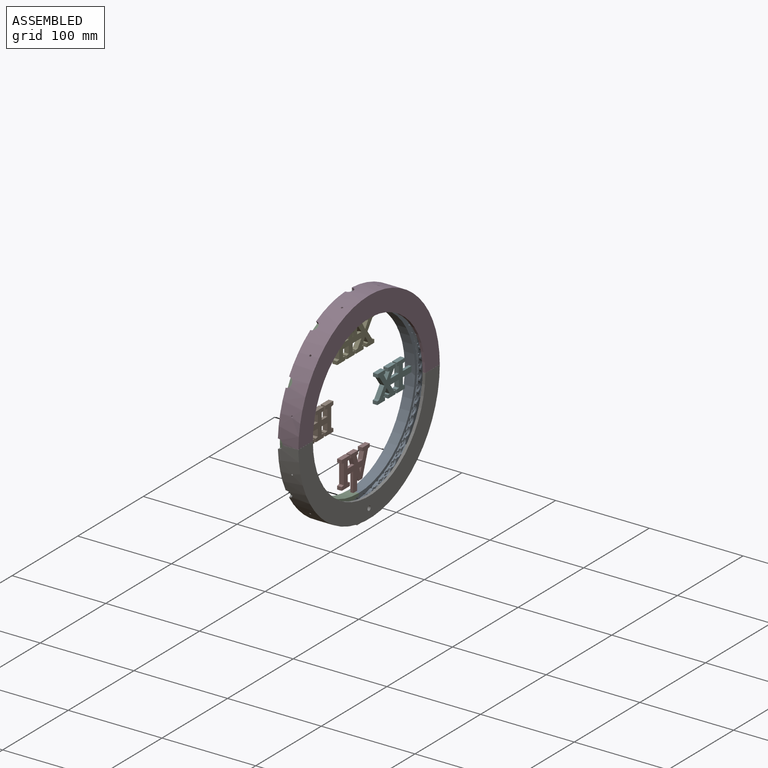
[diagram: assembled view]
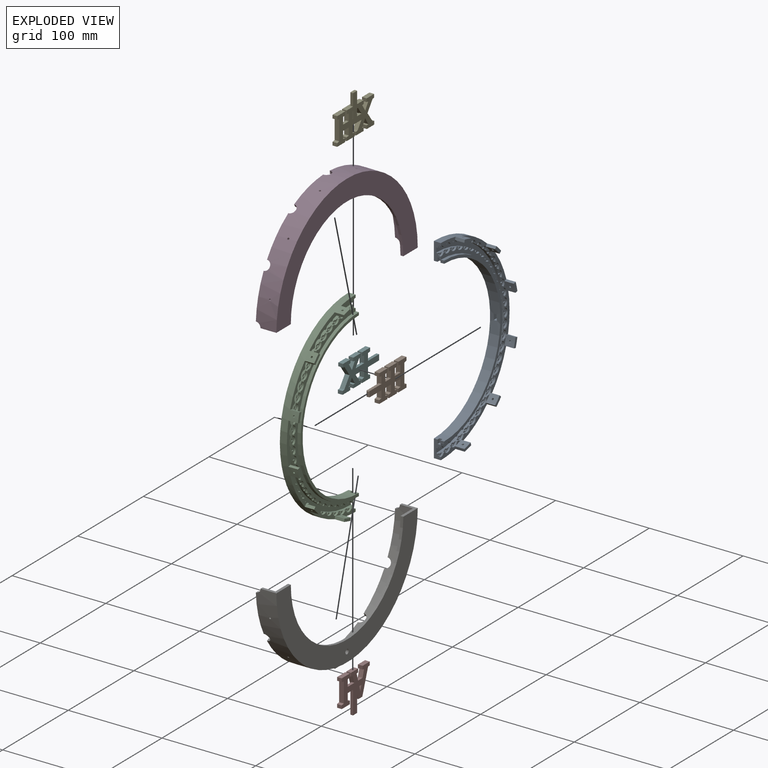
[diagram: exploded view]
GUIDED TOUR — MATED ASSEMBLY (Onshape document ff21faf0adc8174221badba9, AutoMate assembly ff21faf0adc8174221badba9_b4a665cec3b2968bef7a54c8_09225e2b91bc771aeb5ef12d_default)

This assembly has 8 components, labeled P0..P7 below (a component is one placed occurrence of a part; the same part can appear more than once), held together by 6 mates. A mate is a constraint between two components; its type names the relative motion it leaves free:
  FASTENED — locks the two components together rigidly (no relative motion).
Axis/direction vectors are unit vectors and 'through' points are millimeter coordinates, both in the assembly's world frame.

MATES
  1. FASTENED "Fest 2": P2 <-> P6, direction (0.000, 0.259, 0.966) through (-78.31, -98.61, -66.62) mm
  2. FASTENED "Fest 5": P1 <-> P2, direction (0.000, -1.000, 0.000) through (-85.31, -161.50, 34.56) mm
  3. FASTENED "Fest 3": P3 <-> P2, direction (0.000, 0.259, -0.966) through (-78.31, -98.61, 135.74) mm
  4. FASTENED "Fest 1": P2 <-> P4, direction (0.000, 0.000, -1.000) through (-85.31, -71.50, 124.56) mm
  5. FASTENED "Fest 6": P0 <-> P5, direction (0.000, -1.000, 0.000) through (-85.31, 18.50, 34.56) mm
  6. FASTENED "Fest 4": P7 <-> P2, direction (0.000, 0.000, -1.000) through (-85.31, -71.50, -55.44) mm

ASSEMBLY ORDER
  1. P2 — the base component [order heuristic]
  2. P1 [order verified]
  3. P3 — core [order heuristic]
  4. P4 — core [order heuristic]
  5. P6 — core [order heuristic]
  6. P5 [order verified]
  7. P7 [order verified]
  8. P0 — core [order heuristic]
Order-tag legend:
  [order verified] — this step's position reverses a verified removal order: the component was checked to insert without passing through the ones already placed.
  [order heuristic] — the first 5 components form the assembly's core: parts whose collision-free extraction could not be verified, listed in mate-graph order.

Of the 8 components, 7 carry the full construction recipe — the FeatureScript program that regenerates the part's solid from scratch; the rest are supplied as boundary geometry only.
Each toured component is shown spotlighted twice — in the assembled view, then in the exploded view, where a leader line traces a displaced component back to its assembled socket (saturated green if recipe-attached, orange if geometry-only; every other component desaturated gray) — followed by its recipe or geometry summary and the mates that hold it.
NOTE — document 2 of 2 of this assembly tour. The two overview renders and the header above are repeated from document 1; the component sections below continue where the previous document stopped.
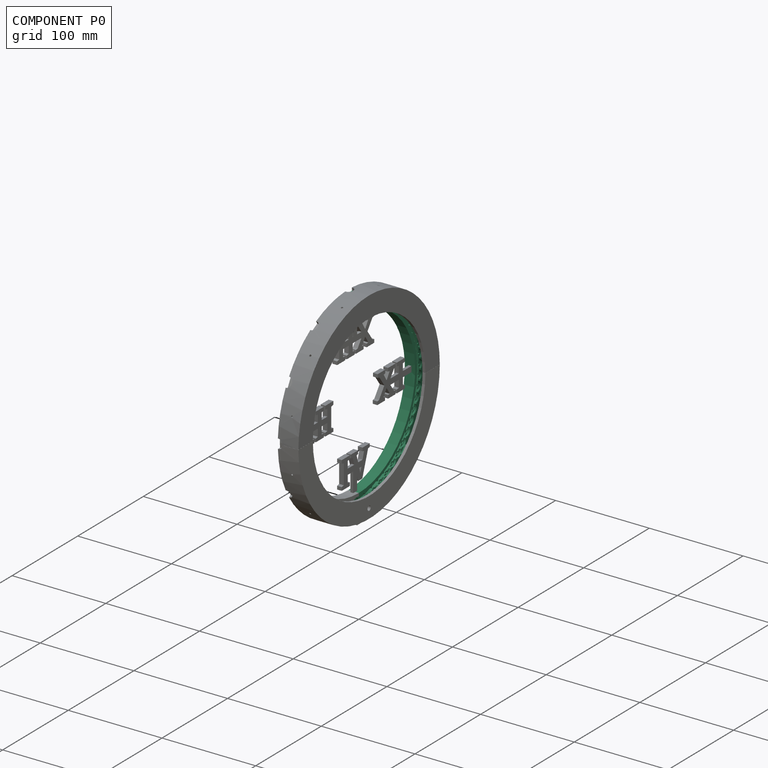
[diagram: component P0 — assembled]
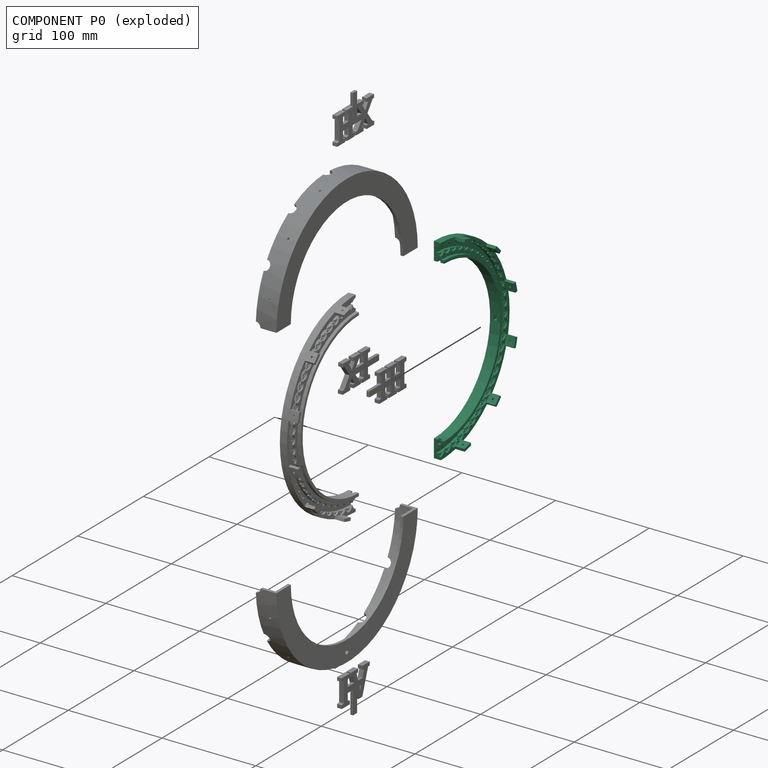
[diagram: component P0 — exploded]
COMPONENT P0 — recipe-attached (CADFS 00784737, mesh-verified: the recipe's output STEP matches this component's geometry to below the mesh-comparison resolution (tessellation chordal tolerance ~0.352 mm)).
Held by: FASTENED mate "Fest 6" to P5.
Construction recipe (FeatureScript — the CAD program that rebuilds this solid; sketch coordinates are in the units given by the * unit suffixes, e.g. mm):

FeatureScript 2656;
import(path : "onshape/std/geometry.fs", version : "2656.0");
import(path : "onshape/std/common.fs", version : "2656.0");
const mm = millimeter;
const VERTEX = EntityType.VERTEX;
const EDGE = EntityType.EDGE;
const FACE = EntityType.FACE;
const BODY = EntityType.BODY;
function v(x, y){return vector(x, y);}
function OD(order){return orderDisambiguation(order);}
function OSD(set){return originalSetDisambiguation(set);}
function TD(topology){return topologyDisambiguation(topology);}
function TDD(query){return trueDependencyDisambiguation(query);}
function sQuery(a, b, c) {return sketchEntityQuery(a, b, c);}

annotation { "Feature Type Name" : "Feature", "Feature Type Description" : "" }
export const myFeature = defineFeature(function(context is Context, id is Id, definition is map)
    precondition{}
    {
        {
            var Q0;
            Q0=qCreatedBy(makeId("Front.planeOp"),FACE);
            var sketch = newSketch(context, id + "F0", { "sketchPlane" : qUnion([Q0])});
            skLineSegment(sketch, "E0.bottom", {"start": v(-125, 105) * mm, "end": v(125, 105) * mm, "construction": true});
            skLineSegment(sketch, "E0.top", {"start": v(-125, -105) * mm, "end": v(125, -105) * mm, "construction": true});
            skLineSegment(sketch, "E0.left", {"start": v(-125, 105) * mm, "end": v(-125, -105) * mm, "construction": true});
            skLineSegment(sketch, "E0.right", {"start": v(125, 105) * mm, "end": v(125, -105) * mm, "construction": true});
            skLineSegment(sketch, "E1", {"start": v(-16.75, 85.73) * mm, "end": v(-16.75, 88.73) * mm});
            skLineSegment(sketch, "E2", {"start": v(-16.75, 88.73) * mm, "end": v(-13.25, 88.73) * mm});
            skLineSegment(sketch, "E3", {"start": v(-16.75, 85.73) * mm, "end": v(-5.75, 85.73) * mm});
            skLineSegment(sketch, "E4", {"start": v(-5.75, 85.73) * mm, "end": v(-5.75, 104.73) * mm});
            skLineSegment(sketch, "E5", {"start": v(-13.25, 104.73) * mm, "end": v(-13.25, 99.23) * mm});
            skLineSegment(sketch, "E6", {"start": v(-13.25, 99.23) * mm, "end": v(-8.25, 99.23) * mm});
            skLineSegment(sketch, "E7", {"start": v(-8.25, 99.23) * mm, "end": v(-8.25, 94.23) * mm});
            skLineSegment(sketch, "E8", {"start": v(-8.25, 94.23) * mm, "end": v(-13.25, 94.23) * mm});
            skLineSegment(sketch, "E9.trimOffspring", {"start": v(-13.25, 94.23) * mm, "end": v(-13.25, 88.73) * mm});
            skLineSegment(sketch, "E10", {"start": v(-74.95, 0) * mm, "end": v(74.95, 0) * mm});
            skLineSegment(sketch, "E11", {"start": v(-13.25, 104.73) * mm, "end": v(-8.75, 104.73) * mm});
            skLineSegment(sketch, "E12.trimOffspring", {"start": v(-7.75, 104.73) * mm, "end": v(-5.75, 104.73) * mm});
            skLineSegment(sketch, "E13", {"start": v(-7.75, 104.73) * mm, "end": v(-8.75, 104.73) * mm});
            skSolve(sketch);
        }
        {
            var Q0;
            Q0 = qSketchRegion(id + "F0", true);
            var Q1;
            Q1=sQuery(id+"F0.wireOp",EDGE,"E10");
            revolve(context, id + "F1", {"surfaceOperationType" : NewSurfaceOperationType.NEW, "entities" : qUnion([Q0]), "axis" : qUnion([Q1]), "revolveType" : RevolveType.ONE_DIRECTION, "angle" : 180 * degree});
        }
        {
            var Q0;
            Q0=qCreatedBy(makeId("Top.planeOp"),FACE);
            cPlane(context, id + "F2", {"entities" : qUnion([Q0]), "cplaneType" : CPlaneType.OFFSET, "offset" : 80 * mm, "oppositeDirection" : true, "width" : 150 * mm, "height" : 150 * mm});
        }
        {
            var Q0;
            Q0=qCreatedBy(id+"F2.planeOp",FACE);
            var sketch = newSketch(context, id + "F3", { "sketchPlane" : qUnion([Q0])});
            skLineSegment(sketch, "E14.top", {"start": v(-9.65, -3.1) * mm, "end": v(-12.85, -3.1) * mm});
            skLineSegment(sketch, "E14.left", {"start": v(-9.65, 0) * mm, "end": v(-9.65, -3.1) * mm});
            skLineSegment(sketch, "E14.right", {"start": v(-12.85, 0) * mm, "end": v(-12.85, -3.1) * mm});
            skLineSegment(sketch, "E15.top", {"start": v(-9.65, 1.57) * mm, "end": v(-12.85, 1.57) * mm});
            skLineSegment(sketch, "E15.left", {"start": v(-9.65, 0) * mm, "end": v(-9.65, 1.57) * mm});
            skLineSegment(sketch, "E15.right", {"start": v(-12.85, 0) * mm, "end": v(-12.85, 1.57) * mm});
            skSolve(sketch);
        }
        {
            var Q0;
            Q0 = qSketchRegion(id + "F3", true);
            var Q1;
            Q1=makeQuery(id+"F1.opRevolve","SWEPT_FACE",FACE,{"disambiguationData":[OSD([sQuery(id+"F0.wireOp",EDGE,"E2")])]});
            extrude(context, id + "F4", {"entities" : qUnion([Q0]), "operationType" : NewBodyOperationType.REMOVE, "oppositeDirection" : true, "depth" : 10 * mm, "endBoundEntityFace" : qUnion([Q1]), "offsetDistance" : 25 * mm});
        }
        {
            var Q0;
            Q0=qCreatedBy(makeId("Front.planeOp"),FACE);
            cPlane(context, id + "F5", {"entities" : qUnion([Q0]), "cplaneType" : CPlaneType.OFFSET, "offset" : 80 * mm, "width" : 150 * mm, "height" : 150 * mm});
        }
        {
            var Q0;
            Q0=qCreatedBy(makeId("Top.planeOp"),FACE);
            cPlane(context, id + "F6", {"entities" : qUnion([Q0]), "cplaneType" : CPlaneType.OFFSET, "offset" : 80 * mm, "width" : 150 * mm, "height" : 150 * mm});
        }
        {
            var Q0;
            Q0=qCreatedBy(id+"F5.planeOp",FACE);
            var sketch = newSketch(context, id + "F7", { "sketchPlane" : qUnion([Q0])});
            skLineSegment(sketch, "E16.bottom", {"start": v(-9.65, -3.1) * mm, "end": v(-12.85, -3.1) * mm});
            skLineSegment(sketch, "E16.top", {"start": v(-9.65, 3.1) * mm, "end": v(-12.85, 3.1) * mm});
            skLineSegment(sketch, "E16.left", {"start": v(-9.65, -3.1) * mm, "end": v(-9.65, 3.1) * mm});
            skLineSegment(sketch, "E16.right", {"start": v(-12.85, -3.1) * mm, "end": v(-12.85, 3.1) * mm});
            skSolve(sketch);
        }
        {
            var Q0;
            Q0 = qSketchRegion(id + "F7", true);
            var Q1;
            Q1=makeQuery(id+"F1.opRevolve","SWEPT_FACE",FACE,{"disambiguationData":[OSD([sQuery(id+"F0.wireOp",EDGE,"E2")])]});
            extrude(context, id + "F8", {"entities" : qUnion([Q0]), "operationType" : NewBodyOperationType.REMOVE, "depth" : 10 * mm, "endBoundEntityFace" : qUnion([Q1]), "offsetDistance" : 25 * mm});
        }
        {
            var Q0;
            Q0=qCreatedBy(id+"F6.planeOp",FACE);
            var sketch = newSketch(context, id + "F9", { "sketchPlane" : qUnion([Q0])});
            skLineSegment(sketch, "E17.bottom", {"start": v(-9.65, 0) * mm, "end": v(-12.85, 0) * mm});
            skLineSegment(sketch, "E17.top", {"start": v(-9.65, -3.1) * mm, "end": v(-12.85, -3.1) * mm});
            skLineSegment(sketch, "E17.left", {"start": v(-9.65, 0) * mm, "end": v(-9.65, -3.1) * mm});
            skLineSegment(sketch, "E17.right", {"start": v(-12.85, 0) * mm, "end": v(-12.85, -3.1) * mm});
            skSolve(sketch);
        }
        {
            var Q0;
            Q0 = qSketchRegion(id + "F9", true);
            var Q1;
            Q1=makeQuery(id+"F1.opRevolve","SWEPT_FACE",FACE,{"disambiguationData":[OSD([sQuery(id+"F0.wireOp",EDGE,"E2")])]});
            extrude(context, id + "F10", {"entities" : qUnion([Q0]), "operationType" : NewBodyOperationType.REMOVE, "depth" : 10 * mm, "endBoundEntityFace" : qUnion([Q1]), "offsetDistance" : 25 * mm});
        }
        {
            var Q0;
            Q0=makeQuery(id+"F1.opRevolve","SWEPT_FACE",FACE,{"disambiguationData":[OSD([sQuery(id+"F0.wireOp",EDGE,"E7")])]});
            var sketch = newSketch(context, id + "F11", { "sketchPlane" : qUnion([Q0])});
            skCircle(sketch, "E18", {"center": v(0, 96.73) * mm, "radius": 5 * mm});
            skCircle(sketch, "E19.1.0", {"center": v(-10.11, 96.2) * mm, "radius": 5 * mm});
            skCircle(sketch, "E19.2.0", {"center": v(-20.11, 94.62) * mm, "radius": 5 * mm});
            skCircle(sketch, "E19.3.0", {"center": v(-29.9, 92) * mm, "radius": 5 * mm});
            skCircle(sketch, "E19.4.0", {"center": v(-39.34, 88.37) * mm, "radius": 5 * mm});
            skCircle(sketch, "E19.5.0", {"center": v(-48.36, 83.77) * mm, "radius": 5 * mm});
            skCircle(sketch, "E19.6.0", {"center": v(-56.86, 78.26) * mm, "radius": 5 * mm});
            skCircle(sketch, "E19.7.0", {"center": v(-64.73, 71.88) * mm, "radius": 5 * mm});
            skCircle(sketch, "E19.8.0", {"center": v(-71.88, 64.73) * mm, "radius": 5 * mm});
            skCircle(sketch, "E19.9.0", {"center": v(-78.26, 56.86) * mm, "radius": 5 * mm});
            skCircle(sketch, "E19.10.0", {"center": v(-83.77, 48.36) * mm, "radius": 5 * mm});
            skCircle(sketch, "E19.11.0", {"center": v(-88.37, 39.34) * mm, "radius": 5 * mm});
            skCircle(sketch, "E19.12.0", {"center": v(-92, 29.9) * mm, "radius": 5 * mm});
            skCircle(sketch, "E19.13.0", {"center": v(-94.62, 20.11) * mm, "radius": 5 * mm});
            skCircle(sketch, "E19.14.0", {"center": v(-96.2, 10.11) * mm, "radius": 5 * mm});
            skCircle(sketch, "E19.15.0", {"center": v(-96.73, 0) * mm, "radius": 5 * mm});
            skCircle(sketch, "E19.16.0", {"center": v(-96.2, -10.11) * mm, "radius": 5 * mm});
            skCircle(sketch, "E19.17.0", {"center": v(-94.62, -20.11) * mm, "radius": 5 * mm});
            skCircle(sketch, "E19.18.0", {"center": v(-92, -29.9) * mm, "radius": 5 * mm});
            skCircle(sketch, "E19.19.0", {"center": v(-88.37, -39.34) * mm, "radius": 5 * mm});
            skCircle(sketch, "E19.20.0", {"center": v(-83.77, -48.36) * mm, "radius": 5 * mm});
            skCircle(sketch, "E19.21.0", {"center": v(-78.26, -56.86) * mm, "radius": 5 * mm});
            skCircle(sketch, "E19.22.0", {"center": v(-71.88, -64.73) * mm, "radius": 5 * mm});
            skCircle(sketch, "E19.23.0", {"center": v(-64.73, -71.88) * mm, "radius": 5 * mm});
            skCircle(sketch, "E19.24.0", {"center": v(-56.86, -78.26) * mm, "radius": 5 * mm});
            skCircle(sketch, "E19.25.0", {"center": v(-48.36, -83.77) * mm, "radius": 5 * mm});
            skCircle(sketch, "E19.26.0", {"center": v(-39.34, -88.37) * mm, "radius": 5 * mm});
            skCircle(sketch, "E19.27.0", {"center": v(-29.9, -92) * mm, "radius": 5 * mm});
            skCircle(sketch, "E19.28.0", {"center": v(-20.11, -94.62) * mm, "radius": 5 * mm});
            skCircle(sketch, "E19.29.0", {"center": v(-10.11, -96.2) * mm, "radius": 5 * mm});
            skCircle(sketch, "E19.30.0", {"center": v(0, -96.73) * mm, "radius": 5 * mm});
            skCircle(sketch, "E19.31.0", {"center": v(10.11, -96.2) * mm, "radius": 5 * mm});
            skCircle(sketch, "E19.32.0", {"center": v(20.11, -94.62) * mm, "radius": 5 * mm});
            skCircle(sketch, "E19.33.0", {"center": v(29.9, -92) * mm, "radius": 5 * mm});
            skCircle(sketch, "E19.34.0", {"center": v(39.34, -88.37) * mm, "radius": 5 * mm});
            skCircle(sketch, "E19.35.0", {"center": v(48.36, -83.77) * mm, "radius": 5 * mm});
            skCircle(sketch, "E19.36.0", {"center": v(56.86, -78.26) * mm, "radius": 5 * mm});
            skCircle(sketch, "E19.37.0", {"center": v(64.73, -71.88) * mm, "radius": 5 * mm});
            skCircle(sketch, "E19.38.0", {"center": v(71.88, -64.73) * mm, "radius": 5 * mm});
            skCircle(sketch, "E19.39.0", {"center": v(78.26, -56.86) * mm, "radius": 5 * mm});
            skCircle(sketch, "E19.40.0", {"center": v(83.77, -48.37) * mm, "radius": 5 * mm});
            skCircle(sketch, "E19.41.0", {"center": v(88.37, -39.34) * mm, "radius": 5 * mm});
            skCircle(sketch, "E19.42.0", {"center": v(92, -29.9) * mm, "radius": 5 * mm});
            skCircle(sketch, "E19.43.0", {"center": v(94.62, -20.11) * mm, "radius": 5 * mm});
            skCircle(sketch, "E19.44.0", {"center": v(96.2, -10.11) * mm, "radius": 5 * mm});
            skCircle(sketch, "E19.45.0", {"center": v(96.73, 0) * mm, "radius": 5 * mm});
            skCircle(sketch, "E19.46.0", {"center": v(96.2, 10.11) * mm, "radius": 5 * mm});
            skCircle(sketch, "E19.47.0", {"center": v(94.62, 20.11) * mm, "radius": 5 * mm});
            skCircle(sketch, "E19.48.0", {"center": v(92, 29.9) * mm, "radius": 5 * mm});
            skCircle(sketch, "E19.49.0", {"center": v(88.37, 39.34) * mm, "radius": 5 * mm});
            skCircle(sketch, "E19.50.0", {"center": v(83.77, 48.36) * mm, "radius": 5 * mm});
            skCircle(sketch, "E19.51.0", {"center": v(78.26, 56.86) * mm, "radius": 5 * mm});
            skCircle(sketch, "E19.52.0", {"center": v(71.88, 64.73) * mm, "radius": 5 * mm});
            skCircle(sketch, "E19.53.0", {"center": v(64.73, 71.88) * mm, "radius": 5 * mm});
            skCircle(sketch, "E19.54.0", {"center": v(56.86, 78.26) * mm, "radius": 5 * mm});
            skCircle(sketch, "E19.55.0", {"center": v(48.36, 83.77) * mm, "radius": 5 * mm});
            skCircle(sketch, "E19.56.0", {"center": v(39.34, 88.37) * mm, "radius": 5 * mm});
            skCircle(sketch, "E19.57.0", {"center": v(29.9, 92) * mm, "radius": 5 * mm});
            skCircle(sketch, "E19.58.0", {"center": v(20.11, 94.62) * mm, "radius": 5 * mm});
            skCircle(sketch, "E19.59.0", {"center": v(10.11, 96.2) * mm, "radius": 5 * mm});
            skPoint(sketch, "E19.center", {"position": v(0, 0) * mm});
            skSolve(sketch);
        }
        {
            var Q0;
            Q0 = qSketchRegion(id + "F11", true);
            extrude(context, id + "F12", {"entities" : qUnion([Q0]), "operationType" : NewBodyOperationType.REMOVE, "depth" : 25 * mm, "offsetDistance" : 25 * mm, "hasSecondDirection" : true, "secondDirectionOppositeDirection" : false, "secondDirectionDepth" : 3 * mm});
        }
        {
            var Q0;
            Q0=makeQuery(id+"F1.opRevolve","SWEPT_FACE",FACE,{"disambiguationData":[OSD([sQuery(id+"F0.wireOp",EDGE,"E7")])]});
            var sketch = newSketch(context, id + "F13", { "sketchPlane" : qUnion([Q0])});
            skLineSegment(sketch, "E20.bottom", {"start": v(1.36, 92.48) * mm, "end": v(0, 92.48) * mm});
            skLineSegment(sketch, "E20.top", {"start": v(1.36, 100.98) * mm, "end": v(0, 100.98) * mm});
            skLineSegment(sketch, "E20.left", {"start": v(1.36, 92.48) * mm, "end": v(1.36, 100.98) * mm});
            skLineSegment(sketch, "E21", {"start": v(1.96, 96.73) * mm, "end": v(-1.46, 96.73) * mm, "construction": true});
            skLineSegment(sketch, "E22.MirrorCS", {"start": v(-1.36, 92.48) * mm, "end": v(0, 92.48) * mm});
            skLineSegment(sketch, "E23.MirrorCS", {"start": v(-1.36, 92.48) * mm, "end": v(-1.36, 100.98) * mm});
            skLineSegment(sketch, "E24.MirrorCS", {"start": v(-1.36, 100.98) * mm, "end": v(0, 100.98) * mm});
            skLineSegment(sketch, "E25", {"start": v(0, 92.48) * mm, "end": v(0, 100.98) * mm, "construction": true});
            skLineSegment(sketch, "E26.1.0", {"start": v(-8.32, 92.12) * mm, "end": v(-9.67, 91.97) * mm});
            skLineSegment(sketch, "E26.1.1", {"start": v(-9.2, 100.57) * mm, "end": v(-10.56, 100.43) * mm});
            skLineSegment(sketch, "E26.1.2", {"start": v(-8.32, 92.12) * mm, "end": v(-9.2, 100.57) * mm});
            skLineSegment(sketch, "E26.1.3", {"start": v(-8.16, 96.4) * mm, "end": v(-11.56, 96.05) * mm, "construction": true});
            skLineSegment(sketch, "E26.1.4", {"start": v(-11.02, 91.83) * mm, "end": v(-9.67, 91.97) * mm});
            skLineSegment(sketch, "E26.1.5", {"start": v(-11.02, 91.83) * mm, "end": v(-11.9, 100.28) * mm});
            skLineSegment(sketch, "E26.1.6", {"start": v(-11.9, 100.28) * mm, "end": v(-10.56, 100.43) * mm});
            skLineSegment(sketch, "E26.1.7", {"start": v(-9.67, 91.97) * mm, "end": v(-10.56, 100.43) * mm, "construction": true});
            skLineSegment(sketch, "E26.2.0", {"start": v(-17.9, 90.74) * mm, "end": v(-19.23, 90.46) * mm});
            skLineSegment(sketch, "E26.2.1", {"start": v(-19.67, 99.06) * mm, "end": v(-21, 98.77) * mm});
            skLineSegment(sketch, "E26.2.2", {"start": v(-17.9, 90.74) * mm, "end": v(-19.67, 99.06) * mm});
            skLineSegment(sketch, "E26.2.3", {"start": v(-18.2, 95.02) * mm, "end": v(-21.54, 94.31) * mm, "construction": true});
            skLineSegment(sketch, "E26.2.4", {"start": v(-20.56, 90.18) * mm, "end": v(-19.23, 90.46) * mm});
            skLineSegment(sketch, "E26.2.5", {"start": v(-20.56, 90.18) * mm, "end": v(-22.32, 98.5) * mm});
            skLineSegment(sketch, "E26.2.6", {"start": v(-22.32, 98.5) * mm, "end": v(-21, 98.77) * mm});
            skLineSegment(sketch, "E26.2.7", {"start": v(-19.23, 90.46) * mm, "end": v(-21, 98.77) * mm, "construction": true});
            skLineSegment(sketch, "E26.3.0", {"start": v(-27.29, 88.37) * mm, "end": v(-28.58, 87.95) * mm});
            skLineSegment(sketch, "E26.3.1", {"start": v(-29.91, 96.46) * mm, "end": v(-31.2, 96.04) * mm});
            skLineSegment(sketch, "E26.3.2", {"start": v(-27.29, 88.37) * mm, "end": v(-29.91, 96.46) * mm});
            skLineSegment(sketch, "E26.3.3", {"start": v(-28.02, 92.6) * mm, "end": v(-31.28, 91.54) * mm, "construction": true});
            skLineSegment(sketch, "E26.3.4", {"start": v(-29.87, 87.53) * mm, "end": v(-28.58, 87.95) * mm});
            skLineSegment(sketch, "E26.3.5", {"start": v(-29.87, 87.53) * mm, "end": v(-32.5, 95.62) * mm});
            skLineSegment(sketch, "E26.3.6", {"start": v(-32.5, 95.62) * mm, "end": v(-31.2, 96.04) * mm});
            skLineSegment(sketch, "E26.3.7", {"start": v(-28.58, 87.95) * mm, "end": v(-31.2, 96.04) * mm, "construction": true});
            skLineSegment(sketch, "E26.4.0", {"start": v(-36.37, 85.04) * mm, "end": v(-37.62, 84.48) * mm});
            skLineSegment(sketch, "E26.4.1", {"start": v(-39.83, 92.8) * mm, "end": v(-41.07, 92.25) * mm});
            skLineSegment(sketch, "E26.4.2", {"start": v(-36.37, 85.04) * mm, "end": v(-39.83, 92.8) * mm});
            skLineSegment(sketch, "E26.4.3", {"start": v(-37.55, 89.17) * mm, "end": v(-40.68, 87.77) * mm, "construction": true});
            skLineSegment(sketch, "E26.4.4", {"start": v(-38.86, 83.93) * mm, "end": v(-37.62, 84.48) * mm});
            skLineSegment(sketch, "E26.4.5", {"start": v(-38.86, 83.93) * mm, "end": v(-42.31, 91.7) * mm});
            skLineSegment(sketch, "E26.4.6", {"start": v(-42.31, 91.7) * mm, "end": v(-41.07, 92.25) * mm});
            skLineSegment(sketch, "E26.4.7", {"start": v(-37.62, 84.48) * mm, "end": v(-41.07, 92.25) * mm, "construction": true});
            skLineSegment(sketch, "E26.5.0", {"start": v(-45.06, 80.77) * mm, "end": v(-46.24, 80.1) * mm});
            skLineSegment(sketch, "E26.5.1", {"start": v(-49.31, 88.13) * mm, "end": v(-50.49, 87.45) * mm});
            skLineSegment(sketch, "E26.5.2", {"start": v(-45.06, 80.77) * mm, "end": v(-49.31, 88.13) * mm});
            skLineSegment(sketch, "E26.5.3", {"start": v(-46.67, 84.75) * mm, "end": v(-49.63, 83.04) * mm, "construction": true});
            skLineSegment(sketch, "E26.5.4", {"start": v(-47.42, 79.41) * mm, "end": v(-46.24, 80.1) * mm});
            skLineSegment(sketch, "E26.5.5", {"start": v(-47.42, 79.41) * mm, "end": v(-51.67, 86.77) * mm});
            skLineSegment(sketch, "E26.5.6", {"start": v(-51.67, 86.77) * mm, "end": v(-50.49, 87.45) * mm});
            skLineSegment(sketch, "E26.5.7", {"start": v(-46.24, 80.1) * mm, "end": v(-50.49, 87.45) * mm, "construction": true});
            skLineSegment(sketch, "E26.6.0", {"start": v(-53.26, 75.62) * mm, "end": v(-54.36, 74.82) * mm});
            skLineSegment(sketch, "E26.6.1", {"start": v(-58.26, 82.5) * mm, "end": v(-59.35, 81.7) * mm});
            skLineSegment(sketch, "E26.6.2", {"start": v(-53.26, 75.62) * mm, "end": v(-58.26, 82.5) * mm});
            skLineSegment(sketch, "E26.6.3", {"start": v(-55.27, 79.4) * mm, "end": v(-58.04, 77.4) * mm, "construction": true});
            skLineSegment(sketch, "E26.6.4", {"start": v(-55.46, 74.02) * mm, "end": v(-54.36, 74.82) * mm});
            skLineSegment(sketch, "E26.6.5", {"start": v(-55.46, 74.02) * mm, "end": v(-60.45, 80.9) * mm});
            skLineSegment(sketch, "E26.6.6", {"start": v(-60.45, 80.9) * mm, "end": v(-59.35, 81.7) * mm});
            skLineSegment(sketch, "E26.6.7", {"start": v(-54.36, 74.82) * mm, "end": v(-59.35, 81.7) * mm, "construction": true});
            skLineSegment(sketch, "E26.7.0", {"start": v(-60.87, 69.63) * mm, "end": v(-61.88, 68.73) * mm});
            skLineSegment(sketch, "E26.7.1", {"start": v(-66.56, 75.95) * mm, "end": v(-67.57, 75.04) * mm});
            skLineSegment(sketch, "E26.7.2", {"start": v(-60.87, 69.63) * mm, "end": v(-66.56, 75.95) * mm});
            skLineSegment(sketch, "E26.7.3", {"start": v(-63.27, 73.2) * mm, "end": v(-65.8, 70.9) * mm, "construction": true});
            skLineSegment(sketch, "E26.7.4", {"start": v(-62.9, 67.82) * mm, "end": v(-61.88, 68.73) * mm});
            skLineSegment(sketch, "E26.7.5", {"start": v(-62.9, 67.82) * mm, "end": v(-68.58, 74.13) * mm});
            skLineSegment(sketch, "E26.7.6", {"start": v(-68.58, 74.13) * mm, "end": v(-67.57, 75.04) * mm});
            skLineSegment(sketch, "E26.7.7", {"start": v(-61.88, 68.73) * mm, "end": v(-67.57, 75.04) * mm, "construction": true});
            skLineSegment(sketch, "E26.8.0", {"start": v(-67.82, 62.9) * mm, "end": v(-68.73, 61.88) * mm});
            skLineSegment(sketch, "E26.8.1", {"start": v(-74.13, 68.58) * mm, "end": v(-75.04, 67.57) * mm});
            skLineSegment(sketch, "E26.8.2", {"start": v(-67.82, 62.9) * mm, "end": v(-74.13, 68.58) * mm});
            skLineSegment(sketch, "E26.8.3", {"start": v(-70.57, 66.18) * mm, "end": v(-72.86, 63.64) * mm, "construction": true});
            skLineSegment(sketch, "E26.8.4", {"start": v(-69.63, 60.87) * mm, "end": v(-68.73, 61.88) * mm});
            skLineSegment(sketch, "E26.8.5", {"start": v(-69.63, 60.87) * mm, "end": v(-75.95, 66.56) * mm});
            skLineSegment(sketch, "E26.8.6", {"start": v(-75.95, 66.56) * mm, "end": v(-75.04, 67.57) * mm});
            skLineSegment(sketch, "E26.8.7", {"start": v(-68.73, 61.88) * mm, "end": v(-75.04, 67.57) * mm, "construction": true});
            skLineSegment(sketch, "E26.9.0", {"start": v(-74.02, 55.46) * mm, "end": v(-74.82, 54.36) * mm});
            skLineSegment(sketch, "E26.9.1", {"start": v(-80.9, 60.45) * mm, "end": v(-81.7, 59.35) * mm});
            skLineSegment(sketch, "E26.9.2", {"start": v(-74.02, 55.46) * mm, "end": v(-80.9, 60.45) * mm});
            skLineSegment(sketch, "E26.9.3", {"start": v(-77.1, 58.44) * mm, "end": v(-79.11, 55.68) * mm, "construction": true});
            skLineSegment(sketch, "E26.9.4", {"start": v(-75.62, 53.26) * mm, "end": v(-74.82, 54.36) * mm});
            skLineSegment(sketch, "E26.9.5", {"start": v(-75.62, 53.26) * mm, "end": v(-82.5, 58.26) * mm});
            skLineSegment(sketch, "E26.9.6", {"start": v(-82.5, 58.26) * mm, "end": v(-81.7, 59.35) * mm});
            skLineSegment(sketch, "E26.9.7", {"start": v(-74.82, 54.36) * mm, "end": v(-81.7, 59.35) * mm, "construction": true});
            skLineSegment(sketch, "E26.10.0", {"start": v(-79.41, 47.42) * mm, "end": v(-80.1, 46.24) * mm});
            skLineSegment(sketch, "E26.10.1", {"start": v(-86.77, 51.67) * mm, "end": v(-87.45, 50.49) * mm});
            skLineSegment(sketch, "E26.10.2", {"start": v(-79.41, 47.42) * mm, "end": v(-86.77, 51.67) * mm});
            skLineSegment(sketch, "E26.10.3", {"start": v(-82.79, 50.06) * mm, "end": v(-84.5, 47.1) * mm, "construction": true});
            skLineSegment(sketch, "E26.10.4", {"start": v(-80.77, 45.06) * mm, "end": v(-80.1, 46.24) * mm});
            skLineSegment(sketch, "E26.10.5", {"start": v(-80.77, 45.06) * mm, "end": v(-88.13, 49.31) * mm});
            skLineSegment(sketch, "E26.10.6", {"start": v(-88.13, 49.31) * mm, "end": v(-87.45, 50.49) * mm});
            skLineSegment(sketch, "E26.10.7", {"start": v(-80.1, 46.24) * mm, "end": v(-87.45, 50.49) * mm, "construction": true});
            skLineSegment(sketch, "E26.11.0", {"start": v(-83.93, 38.86) * mm, "end": v(-84.48, 37.62) * mm});
            skLineSegment(sketch, "E26.11.1", {"start": v(-91.7, 42.31) * mm, "end": v(-92.25, 41.07) * mm});
            skLineSegment(sketch, "E26.11.2", {"start": v(-83.93, 38.86) * mm, "end": v(-91.7, 42.31) * mm});
            skLineSegment(sketch, "E26.11.3", {"start": v(-87.57, 41.14) * mm, "end": v(-88.96, 38) * mm, "construction": true});
            skLineSegment(sketch, "E26.11.4", {"start": v(-85.04, 36.37) * mm, "end": v(-84.48, 37.62) * mm});
            skLineSegment(sketch, "E26.11.5", {"start": v(-85.04, 36.37) * mm, "end": v(-92.8, 39.83) * mm});
            skLineSegment(sketch, "E26.11.6", {"start": v(-92.8, 39.83) * mm, "end": v(-92.25, 41.07) * mm});
            skLineSegment(sketch, "E26.11.7", {"start": v(-84.48, 37.62) * mm, "end": v(-92.25, 41.07) * mm, "construction": true});
            skLineSegment(sketch, "E26.12.0", {"start": v(-87.53, 29.87) * mm, "end": v(-87.95, 28.58) * mm});
            skLineSegment(sketch, "E26.12.1", {"start": v(-95.62, 32.5) * mm, "end": v(-96.04, 31.2) * mm});
            skLineSegment(sketch, "E26.12.2", {"start": v(-87.53, 29.87) * mm, "end": v(-95.62, 32.5) * mm});
            skLineSegment(sketch, "E26.12.3", {"start": v(-91.39, 31.76) * mm, "end": v(-92.45, 28.5) * mm, "construction": true});
            skLineSegment(sketch, "E26.12.4", {"start": v(-88.37, 27.29) * mm, "end": v(-87.95, 28.58) * mm});
            skLineSegment(sketch, "E26.12.5", {"start": v(-88.37, 27.29) * mm, "end": v(-96.46, 29.91) * mm});
            skLineSegment(sketch, "E26.12.6", {"start": v(-96.46, 29.91) * mm, "end": v(-96.04, 31.2) * mm});
            skLineSegment(sketch, "E26.12.7", {"start": v(-87.95, 28.58) * mm, "end": v(-96.04, 31.2) * mm, "construction": true});
            skLineSegment(sketch, "E26.13.0", {"start": v(-90.18, 20.56) * mm, "end": v(-90.46, 19.23) * mm});
            skLineSegment(sketch, "E26.13.1", {"start": v(-98.5, 22.32) * mm, "end": v(-98.77, 21) * mm});
            skLineSegment(sketch, "E26.13.2", {"start": v(-90.18, 20.56) * mm, "end": v(-98.5, 22.32) * mm});
            skLineSegment(sketch, "E26.13.3", {"start": v(-94.2, 22.03) * mm, "end": v(-94.92, 18.68) * mm, "construction": true});
            skLineSegment(sketch, "E26.13.4", {"start": v(-90.74, 17.9) * mm, "end": v(-90.46, 19.23) * mm});
            skLineSegment(sketch, "E26.13.5", {"start": v(-90.74, 17.9) * mm, "end": v(-99.06, 19.67) * mm});
            skLineSegment(sketch, "E26.13.6", {"start": v(-99.06, 19.67) * mm, "end": v(-98.77, 21) * mm});
            skLineSegment(sketch, "E26.13.7", {"start": v(-90.46, 19.23) * mm, "end": v(-98.77, 21) * mm, "construction": true});
            skLineSegment(sketch, "E26.14.0", {"start": v(-91.83, 11.02) * mm, "end": v(-91.97, 9.67) * mm});
            skLineSegment(sketch, "E26.14.1", {"start": v(-100.28, 11.9) * mm, "end": v(-100.43, 10.56) * mm});
            skLineSegment(sketch, "E26.14.2", {"start": v(-91.83, 11.02) * mm, "end": v(-100.28, 11.9) * mm});
            skLineSegment(sketch, "E26.14.3", {"start": v(-96, 12.06) * mm, "end": v(-96.35, 8.66) * mm, "construction": true});
            skLineSegment(sketch, "E26.14.4", {"start": v(-92.12, 8.32) * mm, "end": v(-91.97, 9.67) * mm});
            skLineSegment(sketch, "E26.14.5", {"start": v(-92.12, 8.32) * mm, "end": v(-100.57, 9.2) * mm});
            skLineSegment(sketch, "E26.14.6", {"start": v(-100.57, 9.2) * mm, "end": v(-100.43, 10.56) * mm});
            skLineSegment(sketch, "E26.14.7", {"start": v(-91.97, 9.67) * mm, "end": v(-100.43, 10.56) * mm, "construction": true});
            skLineSegment(sketch, "E26.15.0", {"start": v(-92.48, 1.36) * mm, "end": v(-92.48, 0) * mm});
            skLineSegment(sketch, "E26.15.1", {"start": v(-100.98, 1.36) * mm, "end": v(-100.98, 0) * mm});
            skLineSegment(sketch, "E26.15.2", {"start": v(-92.48, 1.36) * mm, "end": v(-100.98, 1.36) * mm});
            skLineSegment(sketch, "E26.15.3", {"start": v(-96.73, 1.96) * mm, "end": v(-96.73, -1.46) * mm, "construction": true});
            skLineSegment(sketch, "E26.15.4", {"start": v(-92.48, -1.36) * mm, "end": v(-92.48, 0) * mm});
            skLineSegment(sketch, "E26.15.5", {"start": v(-92.48, -1.36) * mm, "end": v(-100.98, -1.36) * mm});
            skLineSegment(sketch, "E26.15.6", {"start": v(-100.98, -1.36) * mm, "end": v(-100.98, 0) * mm});
            skLineSegment(sketch, "E26.15.7", {"start": v(-92.48, 0) * mm, "end": v(-100.98, 0) * mm, "construction": true});
            skLineSegment(sketch, "E26.16.0", {"start": v(-92.12, -8.32) * mm, "end": v(-91.97, -9.67) * mm});
            skLineSegment(sketch, "E26.16.1", {"start": v(-100.57, -9.2) * mm, "end": v(-100.43, -10.56) * mm});
            skLineSegment(sketch, "E26.16.2", {"start": v(-92.12, -8.32) * mm, "end": v(-100.57, -9.2) * mm});
            skLineSegment(sketch, "E26.16.3", {"start": v(-96.4, -8.16) * mm, "end": v(-96.05, -11.56) * mm, "construction": true});
            skLineSegment(sketch, "E26.16.4", {"start": v(-91.83, -11.02) * mm, "end": v(-91.97, -9.67) * mm});
            skLineSegment(sketch, "E26.16.5", {"start": v(-91.83, -11.02) * mm, "end": v(-100.28, -11.9) * mm});
            skLineSegment(sketch, "E26.16.6", {"start": v(-100.28, -11.9) * mm, "end": v(-100.43, -10.56) * mm});
            skLineSegment(sketch, "E26.16.7", {"start": v(-91.97, -9.67) * mm, "end": v(-100.43, -10.56) * mm, "construction": true});
            skLineSegment(sketch, "E26.17.0", {"start": v(-90.74, -17.9) * mm, "end": v(-90.46, -19.23) * mm});
            skLineSegment(sketch, "E26.17.1", {"start": v(-99.06, -19.67) * mm, "end": v(-98.77, -21) * mm});
            skLineSegment(sketch, "E26.17.2", {"start": v(-90.74, -17.9) * mm, "end": v(-99.06, -19.67) * mm});
            skLineSegment(sketch, "E26.17.3", {"start": v(-95.02, -18.2) * mm, "end": v(-94.31, -21.54) * mm, "construction": true});
            skLineSegment(sketch, "E26.17.4", {"start": v(-90.18, -20.56) * mm, "end": v(-90.46, -19.23) * mm});
            skLineSegment(sketch, "E26.17.5", {"start": v(-90.18, -20.56) * mm, "end": v(-98.5, -22.32) * mm});
            skLineSegment(sketch, "E26.17.6", {"start": v(-98.5, -22.32) * mm, "end": v(-98.77, -21) * mm});
            skLineSegment(sketch, "E26.17.7", {"start": v(-90.46, -19.23) * mm, "end": v(-98.77, -21) * mm, "construction": true});
            skLineSegment(sketch, "E26.18.0", {"start": v(-88.37, -27.29) * mm, "end": v(-87.95, -28.58) * mm});
            skLineSegment(sketch, "E26.18.1", {"start": v(-96.46, -29.91) * mm, "end": v(-96.04, -31.2) * mm});
            skLineSegment(sketch, "E26.18.2", {"start": v(-88.37, -27.29) * mm, "end": v(-96.46, -29.91) * mm});
            skLineSegment(sketch, "E26.18.3", {"start": v(-92.6, -28.02) * mm, "end": v(-91.54, -31.28) * mm, "construction": true});
            skLineSegment(sketch, "E26.18.4", {"start": v(-87.53, -29.87) * mm, "end": v(-87.95, -28.58) * mm});
            skLineSegment(sketch, "E26.18.5", {"start": v(-87.53, -29.87) * mm, "end": v(-95.62, -32.5) * mm});
            skLineSegment(sketch, "E26.18.6", {"start": v(-95.62, -32.5) * mm, "end": v(-96.04, -31.2) * mm});
            skLineSegment(sketch, "E26.18.7", {"start": v(-87.95, -28.58) * mm, "end": v(-96.04, -31.2) * mm, "construction": true});
            skLineSegment(sketch, "E26.19.0", {"start": v(-85.04, -36.37) * mm, "end": v(-84.48, -37.62) * mm});
            skLineSegment(sketch, "E26.19.1", {"start": v(-92.8, -39.83) * mm, "end": v(-92.25, -41.07) * mm});
            skLineSegment(sketch, "E26.19.2", {"start": v(-85.04, -36.37) * mm, "end": v(-92.8, -39.83) * mm});
            skLineSegment(sketch, "E26.19.3", {"start": v(-89.17, -37.55) * mm, "end": v(-87.77, -40.68) * mm, "construction": true});
            skLineSegment(sketch, "E26.19.4", {"start": v(-83.93, -38.86) * mm, "end": v(-84.48, -37.62) * mm});
            skLineSegment(sketch, "E26.19.5", {"start": v(-83.93, -38.86) * mm, "end": v(-91.7, -42.31) * mm});
            skLineSegment(sketch, "E26.19.6", {"start": v(-91.7, -42.31) * mm, "end": v(-92.25, -41.07) * mm});
            skLineSegment(sketch, "E26.19.7", {"start": v(-84.48, -37.62) * mm, "end": v(-92.25, -41.07) * mm, "construction": true});
            skLineSegment(sketch, "E26.20.0", {"start": v(-80.77, -45.06) * mm, "end": v(-80.1, -46.24) * mm});
            skLineSegment(sketch, "E26.20.1", {"start": v(-88.13, -49.31) * mm, "end": v(-87.45, -50.49) * mm});
            skLineSegment(sketch, "E26.20.2", {"start": v(-80.77, -45.06) * mm, "end": v(-88.13, -49.31) * mm});
            skLineSegment(sketch, "E26.20.3", {"start": v(-84.75, -46.67) * mm, "end": v(-83.04, -49.63) * mm, "construction": true});
            skLineSegment(sketch, "E26.20.4", {"start": v(-79.41, -47.42) * mm, "end": v(-80.1, -46.24) * mm});
            skLineSegment(sketch, "E26.20.5", {"start": v(-79.41, -47.42) * mm, "end": v(-86.77, -51.67) * mm});
            skLineSegment(sketch, "E26.20.6", {"start": v(-86.77, -51.67) * mm, "end": v(-87.45, -50.49) * mm});
            skLineSegment(sketch, "E26.20.7", {"start": v(-80.1, -46.24) * mm, "end": v(-87.45, -50.49) * mm, "construction": true});
            skLineSegment(sketch, "E26.21.0", {"start": v(-75.62, -53.26) * mm, "end": v(-74.82, -54.36) * mm});
            skLineSegment(sketch, "E26.21.1", {"start": v(-82.5, -58.26) * mm, "end": v(-81.7, -59.35) * mm});
            skLineSegment(sketch, "E26.21.2", {"start": v(-75.62, -53.26) * mm, "end": v(-82.5, -58.26) * mm});
            skLineSegment(sketch, "E26.21.3", {"start": v(-79.4, -55.27) * mm, "end": v(-77.4, -58.04) * mm, "construction": true});
            skLineSegment(sketch, "E26.21.4", {"start": v(-74.02, -55.46) * mm, "end": v(-74.82, -54.36) * mm});
            skLineSegment(sketch, "E26.21.5", {"start": v(-74.02, -55.46) * mm, "end": v(-80.9, -60.45) * mm});
            skLineSegment(sketch, "E26.21.6", {"start": v(-80.9, -60.45) * mm, "end": v(-81.7, -59.35) * mm});
            skLineSegment(sketch, "E26.21.7", {"start": v(-74.82, -54.36) * mm, "end": v(-81.7, -59.35) * mm, "construction": true});
            skLineSegment(sketch, "E26.22.0", {"start": v(-69.63, -60.87) * mm, "end": v(-68.73, -61.88) * mm});
            skLineSegment(sketch, "E26.22.1", {"start": v(-75.95, -66.56) * mm, "end": v(-75.04, -67.57) * mm});
            skLineSegment(sketch, "E26.22.2", {"start": v(-69.63, -60.87) * mm, "end": v(-75.95, -66.56) * mm});
            skLineSegment(sketch, "E26.22.3", {"start": v(-73.2, -63.27) * mm, "end": v(-70.9, -65.8) * mm, "construction": true});
            skLineSegment(sketch, "E26.22.4", {"start": v(-67.82, -62.9) * mm, "end": v(-68.73, -61.88) * mm});
            skLineSegment(sketch, "E26.22.5", {"start": v(-67.82, -62.9) * mm, "end": v(-74.13, -68.58) * mm});
            skLineSegment(sketch, "E26.22.6", {"start": v(-74.13, -68.58) * mm, "end": v(-75.04, -67.57) * mm});
            skLineSegment(sketch, "E26.22.7", {"start": v(-68.73, -61.88) * mm, "end": v(-75.04, -67.57) * mm, "construction": true});
            skLineSegment(sketch, "E26.23.0", {"start": v(-62.9, -67.82) * mm, "end": v(-61.88, -68.73) * mm});
            skLineSegment(sketch, "E26.23.1", {"start": v(-68.58, -74.13) * mm, "end": v(-67.57, -75.04) * mm});
            skLineSegment(sketch, "E26.23.2", {"start": v(-62.9, -67.82) * mm, "end": v(-68.58, -74.13) * mm});
            skLineSegment(sketch, "E26.23.3", {"start": v(-66.18, -70.57) * mm, "end": v(-63.64, -72.86) * mm, "construction": true});
            skLineSegment(sketch, "E26.23.4", {"start": v(-60.87, -69.63) * mm, "end": v(-61.88, -68.73) * mm});
            skLineSegment(sketch, "E26.23.5", {"start": v(-60.87, -69.63) * mm, "end": v(-66.56, -75.95) * mm});
            skLineSegment(sketch, "E26.23.6", {"start": v(-66.56, -75.95) * mm, "end": v(-67.57, -75.04) * mm});
            skLineSegment(sketch, "E26.23.7", {"start": v(-61.88, -68.73) * mm, "end": v(-67.57, -75.04) * mm, "construction": true});
            skLineSegment(sketch, "E26.24.0", {"start": v(-55.46, -74.02) * mm, "end": v(-54.36, -74.82) * mm});
            skLineSegment(sketch, "E26.24.1", {"start": v(-60.45, -80.9) * mm, "end": v(-59.35, -81.7) * mm});
            skLineSegment(sketch, "E26.24.2", {"start": v(-55.46, -74.02) * mm, "end": v(-60.45, -80.9) * mm});
            skLineSegment(sketch, "E26.24.3", {"start": v(-58.44, -77.1) * mm, "end": v(-55.68, -79.11) * mm, "construction": true});
            skLineSegment(sketch, "E26.24.4", {"start": v(-53.26, -75.62) * mm, "end": v(-54.36, -74.82) * mm});
            skLineSegment(sketch, "E26.24.5", {"start": v(-53.26, -75.62) * mm, "end": v(-58.26, -82.5) * mm});
            skLineSegment(sketch, "E26.24.6", {"start": v(-58.26, -82.5) * mm, "end": v(-59.35, -81.7) * mm});
            skLineSegment(sketch, "E26.24.7", {"start": v(-54.36, -74.82) * mm, "end": v(-59.35, -81.7) * mm, "construction": true});
            skLineSegment(sketch, "E26.25.0", {"start": v(-47.42, -79.41) * mm, "end": v(-46.24, -80.1) * mm});
            skLineSegment(sketch, "E26.25.1", {"start": v(-51.67, -86.77) * mm, "end": v(-50.49, -87.45) * mm});
            skLineSegment(sketch, "E26.25.2", {"start": v(-47.42, -79.41) * mm, "end": v(-51.67, -86.77) * mm});
            skLineSegment(sketch, "E26.25.3", {"start": v(-50.06, -82.79) * mm, "end": v(-47.1, -84.5) * mm, "construction": true});
            skLineSegment(sketch, "E26.25.4", {"start": v(-45.06, -80.77) * mm, "end": v(-46.24, -80.1) * mm});
            skLineSegment(sketch, "E26.25.5", {"start": v(-45.06, -80.77) * mm, "end": v(-49.31, -88.13) * mm});
            skLineSegment(sketch, "E26.25.6", {"start": v(-49.31, -88.13) * mm, "end": v(-50.49, -87.45) * mm});
            skLineSegment(sketch, "E26.25.7", {"start": v(-46.24, -80.1) * mm, "end": v(-50.49, -87.45) * mm, "construction": true});
            skLineSegment(sketch, "E26.26.0", {"start": v(-38.86, -83.93) * mm, "end": v(-37.62, -84.48) * mm});
            skLineSegment(sketch, "E26.26.1", {"start": v(-42.31, -91.7) * mm, "end": v(-41.07, -92.25) * mm});
            skLineSegment(sketch, "E26.26.2", {"start": v(-38.86, -83.93) * mm, "end": v(-42.31, -91.7) * mm});
            skLineSegment(sketch, "E26.26.3", {"start": v(-41.14, -87.57) * mm, "end": v(-38, -88.96) * mm, "construction": true});
            skLineSegment(sketch, "E26.26.4", {"start": v(-36.37, -85.04) * mm, "end": v(-37.62, -84.48) * mm});
            skLineSegment(sketch, "E26.26.5", {"start": v(-36.37, -85.04) * mm, "end": v(-39.83, -92.8) * mm});
            skLineSegment(sketch, "E26.26.6", {"start": v(-39.83, -92.8) * mm, "end": v(-41.07, -92.25) * mm});
            skLineSegment(sketch, "E26.26.7", {"start": v(-37.62, -84.48) * mm, "end": v(-41.07, -92.25) * mm, "construction": true});
            skLineSegment(sketch, "E26.27.0", {"start": v(-29.87, -87.53) * mm, "end": v(-28.58, -87.95) * mm});
            skLineSegment(sketch, "E26.27.1", {"start": v(-32.5, -95.62) * mm, "end": v(-31.2, -96.04) * mm});
            skLineSegment(sketch, "E26.27.2", {"start": v(-29.87, -87.53) * mm, "end": v(-32.5, -95.62) * mm});
            skLineSegment(sketch, "E26.27.3", {"start": v(-31.76, -91.39) * mm, "end": v(-28.5, -92.45) * mm, "construction": true});
            skLineSegment(sketch, "E26.27.4", {"start": v(-27.29, -88.37) * mm, "end": v(-28.58, -87.95) * mm});
            skLineSegment(sketch, "E26.27.5", {"start": v(-27.29, -88.37) * mm, "end": v(-29.91, -96.46) * mm});
            skLineSegment(sketch, "E26.27.6", {"start": v(-29.91, -96.46) * mm, "end": v(-31.2, -96.04) * mm});
            skLineSegment(sketch, "E26.27.7", {"start": v(-28.58, -87.95) * mm, "end": v(-31.2, -96.04) * mm, "construction": true});
            skLineSegment(sketch, "E26.28.0", {"start": v(-20.56, -90.18) * mm, "end": v(-19.23, -90.46) * mm});
            skLineSegment(sketch, "E26.28.1", {"start": v(-22.32, -98.5) * mm, "end": v(-21, -98.77) * mm});
            skLineSegment(sketch, "E26.28.2", {"start": v(-20.56, -90.18) * mm, "end": v(-22.32, -98.5) * mm});
            skLineSegment(sketch, "E26.28.3", {"start": v(-22.03, -94.2) * mm, "end": v(-18.68, -94.92) * mm, "construction": true});
            skLineSegment(sketch, "E26.28.4", {"start": v(-17.9, -90.74) * mm, "end": v(-19.23, -90.46) * mm});
            skLineSegment(sketch, "E26.28.5", {"start": v(-17.9, -90.74) * mm, "end": v(-19.67, -99.06) * mm});
            skLineSegment(sketch, "E26.28.6", {"start": v(-19.67, -99.06) * mm, "end": v(-21, -98.77) * mm});
            skLineSegment(sketch, "E26.28.7", {"start": v(-19.23, -90.46) * mm, "end": v(-21, -98.77) * mm, "construction": true});
            skLineSegment(sketch, "E26.29.0", {"start": v(-11.02, -91.83) * mm, "end": v(-9.67, -91.97) * mm});
            skLineSegment(sketch, "E26.29.1", {"start": v(-11.9, -100.28) * mm, "end": v(-10.56, -100.43) * mm});
            skLineSegment(sketch, "E26.29.2", {"start": v(-11.02, -91.83) * mm, "end": v(-11.9, -100.28) * mm});
            skLineSegment(sketch, "E26.29.3", {"start": v(-12.06, -96) * mm, "end": v(-8.66, -96.35) * mm, "construction": true});
            skLineSegment(sketch, "E26.29.4", {"start": v(-8.32, -92.12) * mm, "end": v(-9.67, -91.97) * mm});
            skLineSegment(sketch, "E26.29.5", {"start": v(-8.32, -92.12) * mm, "end": v(-9.2, -100.57) * mm});
            skLineSegment(sketch, "E26.29.6", {"start": v(-9.2, -100.57) * mm, "end": v(-10.56, -100.43) * mm});
            skLineSegment(sketch, "E26.29.7", {"start": v(-9.67, -91.97) * mm, "end": v(-10.56, -100.43) * mm, "construction": true});
            skLineSegment(sketch, "E26.30.0", {"start": v(-1.36, -92.48) * mm, "end": v(0, -92.48) * mm});
            skLineSegment(sketch, "E26.30.1", {"start": v(-1.36, -100.98) * mm, "end": v(0, -100.98) * mm});
            skLineSegment(sketch, "E26.30.2", {"start": v(-1.36, -92.48) * mm, "end": v(-1.36, -100.98) * mm});
            skLineSegment(sketch, "E26.30.3", {"start": v(-1.96, -96.73) * mm, "end": v(1.46, -96.73) * mm, "construction": true});
            skLineSegment(sketch, "E26.30.4", {"start": v(1.36, -92.48) * mm, "end": v(0, -92.48) * mm});
            skLineSegment(sketch, "E26.30.5", {"start": v(1.36, -92.48) * mm, "end": v(1.36, -100.98) * mm});
            skLineSegment(sketch, "E26.30.6", {"start": v(1.36, -100.98) * mm, "end": v(0, -100.98) * mm});
            skLineSegment(sketch, "E26.30.7", {"start": v(0, -92.48) * mm, "end": v(0, -100.98) * mm, "construction": true});
            skLineSegment(sketch, "E26.31.0", {"start": v(8.32, -92.12) * mm, "end": v(9.67, -91.97) * mm});
            skLineSegment(sketch, "E26.31.1", {"start": v(9.2, -100.57) * mm, "end": v(10.56, -100.43) * mm});
            skLineSegment(sketch, "E26.31.2", {"start": v(8.32, -92.12) * mm, "end": v(9.2, -100.57) * mm});
            skLineSegment(sketch, "E26.31.3", {"start": v(8.16, -96.4) * mm, "end": v(11.56, -96.05) * mm, "construction": true});
            skLineSegment(sketch, "E26.31.4", {"start": v(11.02, -91.83) * mm, "end": v(9.67, -91.97) * mm});
            skLineSegment(sketch, "E26.31.5", {"start": v(11.02, -91.83) * mm, "end": v(11.9, -100.28) * mm});
            skLineSegment(sketch, "E26.31.6", {"start": v(11.9, -100.28) * mm, "end": v(10.56, -100.43) * mm});
            skLineSegment(sketch, "E26.31.7", {"start": v(9.67, -91.97) * mm, "end": v(10.56, -100.43) * mm, "construction": true});
            skLineSegment(sketch, "E26.32.0", {"start": v(17.9, -90.74) * mm, "end": v(19.23, -90.46) * mm});
            skLineSegment(sketch, "E26.32.1", {"start": v(19.67, -99.06) * mm, "end": v(21, -98.77) * mm});
            skLineSegment(sketch, "E26.32.2", {"start": v(17.9, -90.74) * mm, "end": v(19.67, -99.06) * mm});
            skLineSegment(sketch, "E26.32.3", {"start": v(18.2, -95.02) * mm, "end": v(21.54, -94.31) * mm, "construction": true});
            skLineSegment(sketch, "E26.32.4", {"start": v(20.56, -90.18) * mm, "end": v(19.23, -90.46) * mm});
            skLineSegment(sketch, "E26.32.5", {"start": v(20.56, -90.18) * mm, "end": v(22.32, -98.5) * mm});
            skLineSegment(sketch, "E26.32.6", {"start": v(22.32, -98.5) * mm, "end": v(21, -98.77) * mm});
            skLineSegment(sketch, "E26.32.7", {"start": v(19.23, -90.46) * mm, "end": v(21, -98.77) * mm, "construction": true});
            skLineSegment(sketch, "E26.33.0", {"start": v(27.29, -88.37) * mm, "end": v(28.58, -87.95) * mm});
            skLineSegment(sketch, "E26.33.1", {"start": v(29.91, -96.46) * mm, "end": v(31.2, -96.04) * mm});
            skLineSegment(sketch, "E26.33.2", {"start": v(27.29, -88.37) * mm, "end": v(29.91, -96.46) * mm});
            skLineSegment(sketch, "E26.33.3", {"start": v(28.02, -92.6) * mm, "end": v(31.28, -91.54) * mm, "construction": true});
            skLineSegment(sketch, "E26.33.4", {"start": v(29.87, -87.53) * mm, "end": v(28.58, -87.95) * mm});
            skLineSegment(sketch, "E26.33.5", {"start": v(29.87, -87.53) * mm, "end": v(32.5, -95.62) * mm});
            skLineSegment(sketch, "E26.33.6", {"start": v(32.5, -95.62) * mm, "end": v(31.2, -96.04) * mm});
            skLineSegment(sketch, "E26.33.7", {"start": v(28.58, -87.95) * mm, "end": v(31.2, -96.04) * mm, "construction": true});
            skLineSegment(sketch, "E26.34.0", {"start": v(36.37, -85.04) * mm, "end": v(37.62, -84.48) * mm});
            skLineSegment(sketch, "E26.34.1", {"start": v(39.83, -92.8) * mm, "end": v(41.07, -92.25) * mm});
            skLineSegment(sketch, "E26.34.2", {"start": v(36.37, -85.04) * mm, "end": v(39.83, -92.8) * mm});
            skLineSegment(sketch, "E26.34.3", {"start": v(37.55, -89.17) * mm, "end": v(40.68, -87.77) * mm, "construction": true});
            skLineSegment(sketch, "E26.34.4", {"start": v(38.86, -83.93) * mm, "end": v(37.62, -84.48) * mm});
            skLineSegment(sketch, "E26.34.5", {"start": v(38.86, -83.93) * mm, "end": v(42.31, -91.7) * mm});
            skLineSegment(sketch, "E26.34.6", {"start": v(42.31, -91.7) * mm, "end": v(41.07, -92.25) * mm});
            skLineSegment(sketch, "E26.34.7", {"start": v(37.62, -84.48) * mm, "end": v(41.07, -92.25) * mm, "construction": true});
            skLineSegment(sketch, "E26.35.0", {"start": v(45.06, -80.77) * mm, "end": v(46.24, -80.1) * mm});
            skLineSegment(sketch, "E26.35.1", {"start": v(49.31, -88.13) * mm, "end": v(50.49, -87.45) * mm});
            skLineSegment(sketch, "E26.35.2", {"start": v(45.06, -80.77) * mm, "end": v(49.31, -88.13) * mm});
            skLineSegment(sketch, "E26.35.3", {"start": v(46.67, -84.75) * mm, "end": v(49.63, -83.04) * mm, "construction": true});
            skLineSegment(sketch, "E26.35.4", {"start": v(47.42, -79.41) * mm, "end": v(46.24, -80.1) * mm});
            skLineSegment(sketch, "E26.35.5", {"start": v(47.42, -79.41) * mm, "end": v(51.67, -86.77) * mm});
            skLineSegment(sketch, "E26.35.6", {"start": v(51.67, -86.77) * mm, "end": v(50.49, -87.45) * mm});
            skLineSegment(sketch, "E26.35.7", {"start": v(46.24, -80.1) * mm, "end": v(50.49, -87.45) * mm, "construction": true});
            skLineSegment(sketch, "E26.36.0", {"start": v(53.26, -75.62) * mm, "end": v(54.36, -74.82) * mm});
            skLineSegment(sketch, "E26.36.1", {"start": v(58.26, -82.5) * mm, "end": v(59.35, -81.7) * mm});
            skLineSegment(sketch, "E26.36.2", {"start": v(53.26, -75.62) * mm, "end": v(58.26, -82.5) * mm});
            skLineSegment(sketch, "E26.36.3", {"start": v(55.27, -79.4) * mm, "end": v(58.04, -77.4) * mm, "construction": true});
            skLineSegment(sketch, "E26.36.4", {"start": v(55.46, -74.02) * mm, "end": v(54.36, -74.82) * mm});
            skLineSegment(sketch, "E26.36.5", {"start": v(55.46, -74.02) * mm, "end": v(60.45, -80.9) * mm});
            skLineSegment(sketch, "E26.36.6", {"start": v(60.45, -80.9) * mm, "end": v(59.35, -81.7) * mm});
            skLineSegment(sketch, "E26.36.7", {"start": v(54.36, -74.82) * mm, "end": v(59.35, -81.7) * mm, "construction": true});
            skLineSegment(sketch, "E26.37.0", {"start": v(60.87, -69.63) * mm, "end": v(61.88, -68.73) * mm});
            skLineSegment(sketch, "E26.37.1", {"start": v(66.56, -75.95) * mm, "end": v(67.57, -75.04) * mm});
            skLineSegment(sketch, "E26.37.2", {"start": v(60.87, -69.63) * mm, "end": v(66.56, -75.95) * mm});
            skLineSegment(sketch, "E26.37.3", {"start": v(63.27, -73.2) * mm, "end": v(65.8, -70.9) * mm, "construction": true});
            skLineSegment(sketch, "E26.37.4", {"start": v(62.9, -67.82) * mm, "end": v(61.88, -68.73) * mm});
            skLineSegment(sketch, "E26.37.5", {"start": v(62.9, -67.82) * mm, "end": v(68.58, -74.13) * mm});
            skLineSegment(sketch, "E26.37.6", {"start": v(68.58, -74.13) * mm, "end": v(67.57, -75.04) * mm});
            skLineSegment(sketch, "E26.37.7", {"start": v(61.88, -68.73) * mm, "end": v(67.57, -75.04) * mm, "construction": true});
            skLineSegment(sketch, "E26.38.0", {"start": v(67.82, -62.9) * mm, "end": v(68.73, -61.88) * mm});
            skLineSegment(sketch, "E26.38.1", {"start": v(74.13, -68.58) * mm, "end": v(75.04, -67.57) * mm});
            skLineSegment(sketch, "E26.38.2", {"start": v(67.82, -62.9) * mm, "end": v(74.13, -68.58) * mm});
            skLineSegment(sketch, "E26.38.3", {"start": v(70.57, -66.18) * mm, "end": v(72.86, -63.64) * mm, "construction": true});
            skLineSegment(sketch, "E26.38.4", {"start": v(69.63, -60.87) * mm, "end": v(68.73, -61.88) * mm});
            skLineSegment(sketch, "E26.38.5", {"start": v(69.63, -60.87) * mm, "end": v(75.95, -66.56) * mm});
            skLineSegment(sketch, "E26.38.6", {"start": v(75.95, -66.56) * mm, "end": v(75.04, -67.57) * mm});
            skLineSegment(sketch, "E26.38.7", {"start": v(68.73, -61.88) * mm, "end": v(75.04, -67.57) * mm, "construction": true});
            skLineSegment(sketch, "E26.39.0", {"start": v(74.02, -55.46) * mm, "end": v(74.82, -54.36) * mm});
            skLineSegment(sketch, "E26.39.1", {"start": v(80.9, -60.45) * mm, "end": v(81.7, -59.35) * mm});
            skLineSegment(sketch, "E26.39.2", {"start": v(74.02, -55.46) * mm, "end": v(80.9, -60.45) * mm});
            skLineSegment(sketch, "E26.39.3", {"start": v(77.1, -58.44) * mm, "end": v(79.11, -55.68) * mm, "construction": true});
            skLineSegment(sketch, "E26.39.4", {"start": v(75.62, -53.26) * mm, "end": v(74.82, -54.36) * mm});
            skLineSegment(sketch, "E26.39.5", {"start": v(75.62, -53.26) * mm, "end": v(82.5, -58.26) * mm});
            skLineSegment(sketch, "E26.39.6", {"start": v(82.5, -58.26) * mm, "end": v(81.7, -59.35) * mm});
            skLineSegment(sketch, "E26.39.7", {"start": v(74.82, -54.36) * mm, "end": v(81.7, -59.35) * mm, "construction": true});
            skLineSegment(sketch, "E26.40.0", {"start": v(79.41, -47.42) * mm, "end": v(80.1, -46.24) * mm});
            skLineSegment(sketch, "E26.40.1", {"start": v(86.77, -51.67) * mm, "end": v(87.45, -50.5) * mm});
            skLineSegment(sketch, "E26.40.2", {"start": v(79.41, -47.42) * mm, "end": v(86.77, -51.67) * mm});
            skLineSegment(sketch, "E26.40.3", {"start": v(82.79, -50.06) * mm, "end": v(84.5, -47.1) * mm, "construction": true});
            skLineSegment(sketch, "E26.40.4", {"start": v(80.77, -45.06) * mm, "end": v(80.1, -46.24) * mm});
            skLineSegment(sketch, "E26.40.5", {"start": v(80.77, -45.06) * mm, "end": v(88.13, -49.31) * mm});
            skLineSegment(sketch, "E26.40.6", {"start": v(88.13, -49.31) * mm, "end": v(87.45, -50.5) * mm});
            skLineSegment(sketch, "E26.40.7", {"start": v(80.1, -46.24) * mm, "end": v(87.45, -50.5) * mm, "construction": true});
            skLineSegment(sketch, "E26.41.0", {"start": v(83.93, -38.86) * mm, "end": v(84.48, -37.62) * mm});
            skLineSegment(sketch, "E26.41.1", {"start": v(91.7, -42.31) * mm, "end": v(92.25, -41.07) * mm});
            skLineSegment(sketch, "E26.41.2", {"start": v(83.93, -38.86) * mm, "end": v(91.7, -42.31) * mm});
            skLineSegment(sketch, "E26.41.3", {"start": v(87.57, -41.14) * mm, "end": v(88.96, -38) * mm, "construction": true});
            skLineSegment(sketch, "E26.41.4", {"start": v(85.04, -36.37) * mm, "end": v(84.48, -37.62) * mm});
            skLineSegment(sketch, "E26.41.5", {"start": v(85.04, -36.37) * mm, "end": v(92.8, -39.83) * mm});
            skLineSegment(sketch, "E26.41.6", {"start": v(92.8, -39.83) * mm, "end": v(92.25, -41.07) * mm});
            skLineSegment(sketch, "E26.41.7", {"start": v(84.48, -37.62) * mm, "end": v(92.25, -41.07) * mm, "construction": true});
            skLineSegment(sketch, "E26.42.0", {"start": v(87.53, -29.87) * mm, "end": v(87.95, -28.58) * mm});
            skLineSegment(sketch, "E26.42.1", {"start": v(95.62, -32.5) * mm, "end": v(96.04, -31.2) * mm});
            skLineSegment(sketch, "E26.42.2", {"start": v(87.53, -29.87) * mm, "end": v(95.62, -32.5) * mm});
            skLineSegment(sketch, "E26.42.3", {"start": v(91.39, -31.76) * mm, "end": v(92.45, -28.5) * mm, "construction": true});
            skLineSegment(sketch, "E26.42.4", {"start": v(88.37, -27.29) * mm, "end": v(87.95, -28.58) * mm});
            skLineSegment(sketch, "E26.42.5", {"start": v(88.37, -27.29) * mm, "end": v(96.46, -29.91) * mm});
            skLineSegment(sketch, "E26.42.6", {"start": v(96.46, -29.91) * mm, "end": v(96.04, -31.2) * mm});
            skLineSegment(sketch, "E26.42.7", {"start": v(87.95, -28.58) * mm, "end": v(96.04, -31.2) * mm, "construction": true});
            skLineSegment(sketch, "E26.43.0", {"start": v(90.18, -20.56) * mm, "end": v(90.46, -19.23) * mm});
            skLineSegment(sketch, "E26.43.1", {"start": v(98.5, -22.32) * mm, "end": v(98.77, -21) * mm});
            skLineSegment(sketch, "E26.43.2", {"start": v(90.18, -20.56) * mm, "end": v(98.5, -22.32) * mm});
            skLineSegment(sketch, "E26.43.3", {"start": v(94.2, -22.03) * mm, "end": v(94.92, -18.68) * mm, "construction": true});
            skLineSegment(sketch, "E26.43.4", {"start": v(90.74, -17.9) * mm, "end": v(90.46, -19.23) * mm});
            skLineSegment(sketch, "E26.43.5", {"start": v(90.74, -17.9) * mm, "end": v(99.06, -19.67) * mm});
            skLineSegment(sketch, "E26.43.6", {"start": v(99.06, -19.67) * mm, "end": v(98.77, -21) * mm});
            skLineSegment(sketch, "E26.43.7", {"start": v(90.46, -19.23) * mm, "end": v(98.77, -21) * mm, "construction": true});
            skLineSegment(sketch, "E26.44.0", {"start": v(91.83, -11.02) * mm, "end": v(91.97, -9.67) * mm});
            skLineSegment(sketch, "E26.44.1", {"start": v(100.28, -11.9) * mm, "end": v(100.43, -10.56) * mm});
            skLineSegment(sketch, "E26.44.2", {"start": v(91.83, -11.02) * mm, "end": v(100.28, -11.9) * mm});
            skLineSegment(sketch, "E26.44.3", {"start": v(96, -12.06) * mm, "end": v(96.35, -8.66) * mm, "construction": true});
            skLineSegment(sketch, "E26.44.4", {"start": v(92.12, -8.32) * mm, "end": v(91.97, -9.67) * mm});
            skLineSegment(sketch, "E26.44.5", {"start": v(92.12, -8.32) * mm, "end": v(100.57, -9.2) * mm});
            skLineSegment(sketch, "E26.44.6", {"start": v(100.57, -9.2) * mm, "end": v(100.43, -10.56) * mm});
            skLineSegment(sketch, "E26.44.7", {"start": v(91.97, -9.67) * mm, "end": v(100.43, -10.56) * mm, "construction": true});
            skLineSegment(sketch, "E26.45.0", {"start": v(92.48, -1.36) * mm, "end": v(92.48, 0) * mm});
            skLineSegment(sketch, "E26.45.1", {"start": v(100.98, -1.36) * mm, "end": v(100.98, 0) * mm});
            skLineSegment(sketch, "E26.45.2", {"start": v(92.48, -1.36) * mm, "end": v(100.98, -1.36) * mm});
            skLineSegment(sketch, "E26.45.3", {"start": v(96.73, -1.96) * mm, "end": v(96.73, 1.46) * mm, "construction": true});
            skLineSegment(sketch, "E26.45.4", {"start": v(92.48, 1.36) * mm, "end": v(92.48, 0) * mm});
            skLineSegment(sketch, "E26.45.5", {"start": v(92.48, 1.36) * mm, "end": v(100.98, 1.36) * mm});
            skLineSegment(sketch, "E26.45.6", {"start": v(100.98, 1.36) * mm, "end": v(100.98, 0) * mm});
            skLineSegment(sketch, "E26.45.7", {"start": v(92.48, 0) * mm, "end": v(100.98, 0) * mm, "construction": true});
            skLineSegment(sketch, "E26.46.0", {"start": v(92.12, 8.32) * mm, "end": v(91.97, 9.67) * mm});
            skLineSegment(sketch, "E26.46.1", {"start": v(100.57, 9.2) * mm, "end": v(100.43, 10.56) * mm});
            skLineSegment(sketch, "E26.46.2", {"start": v(92.12, 8.32) * mm, "end": v(100.57, 9.2) * mm});
            skLineSegment(sketch, "E26.46.3", {"start": v(96.4, 8.16) * mm, "end": v(96.05, 11.56) * mm, "construction": true});
            skLineSegment(sketch, "E26.46.4", {"start": v(91.83, 11.02) * mm, "end": v(91.97, 9.67) * mm});
            skLineSegment(sketch, "E26.46.5", {"start": v(91.83, 11.02) * mm, "end": v(100.28, 11.9) * mm});
            skLineSegment(sketch, "E26.46.6", {"start": v(100.28, 11.9) * mm, "end": v(100.43, 10.56) * mm});
            skLineSegment(sketch, "E26.46.7", {"start": v(91.97, 9.67) * mm, "end": v(100.43, 10.56) * mm, "construction": true});
            skLineSegment(sketch, "E26.47.0", {"start": v(90.74, 17.9) * mm, "end": v(90.46, 19.23) * mm});
            skLineSegment(sketch, "E26.47.1", {"start": v(99.06, 19.67) * mm, "end": v(98.77, 21) * mm});
            skLineSegment(sketch, "E26.47.2", {"start": v(90.74, 17.9) * mm, "end": v(99.06, 19.67) * mm});
            skLineSegment(sketch, "E26.47.3", {"start": v(95.02, 18.2) * mm, "end": v(94.31, 21.54) * mm, "construction": true});
            skLineSegment(sketch, "E26.47.4", {"start": v(90.18, 20.56) * mm, "end": v(90.46, 19.23) * mm});
            skLineSegment(sketch, "E26.47.5", {"start": v(90.18, 20.56) * mm, "end": v(98.5, 22.32) * mm});
            skLineSegment(sketch, "E26.47.6", {"start": v(98.5, 22.32) * mm, "end": v(98.77, 21) * mm});
            skLineSegment(sketch, "E26.47.7", {"start": v(90.46, 19.23) * mm, "end": v(98.77, 21) * mm, "construction": true});
            skLineSegment(sketch, "E26.48.0", {"start": v(88.37, 27.29) * mm, "end": v(87.95, 28.58) * mm});
            skLineSegment(sketch, "E26.48.1", {"start": v(96.46, 29.91) * mm, "end": v(96.04, 31.2) * mm});
            skLineSegment(sketch, "E26.48.2", {"start": v(88.37, 27.29) * mm, "end": v(96.46, 29.91) * mm});
            skLineSegment(sketch, "E26.48.3", {"start": v(92.6, 28.02) * mm, "end": v(91.54, 31.28) * mm, "construction": true});
            skLineSegment(sketch, "E26.48.4", {"start": v(87.53, 29.87) * mm, "end": v(87.95, 28.58) * mm});
            skLineSegment(sketch, "E26.48.5", {"start": v(87.53, 29.87) * mm, "end": v(95.62, 32.5) * mm});
            skLineSegment(sketch, "E26.48.6", {"start": v(95.62, 32.5) * mm, "end": v(96.04, 31.2) * mm});
            skLineSegment(sketch, "E26.48.7", {"start": v(87.95, 28.58) * mm, "end": v(96.04, 31.2) * mm, "construction": true});
            skLineSegment(sketch, "E26.49.0", {"start": v(85.04, 36.37) * mm, "end": v(84.48, 37.62) * mm});
            skLineSegment(sketch, "E26.49.1", {"start": v(92.8, 39.83) * mm, "end": v(92.25, 41.07) * mm});
            skLineSegment(sketch, "E26.49.2", {"start": v(85.04, 36.37) * mm, "end": v(92.8, 39.83) * mm});
            skLineSegment(sketch, "E26.49.3", {"start": v(89.17, 37.55) * mm, "end": v(87.77, 40.68) * mm, "construction": true});
            skLineSegment(sketch, "E26.49.4", {"start": v(83.93, 38.86) * mm, "end": v(84.48, 37.62) * mm});
            skLineSegment(sketch, "E26.49.5", {"start": v(83.93, 38.86) * mm, "end": v(91.7, 42.31) * mm});
            skLineSegment(sketch, "E26.49.6", {"start": v(91.7, 42.31) * mm, "end": v(92.25, 41.07) * mm});
            skLineSegment(sketch, "E26.49.7", {"start": v(84.48, 37.62) * mm, "end": v(92.25, 41.07) * mm, "construction": true});
            skLineSegment(sketch, "E26.50.0", {"start": v(80.77, 45.06) * mm, "end": v(80.1, 46.24) * mm});
            skLineSegment(sketch, "E26.50.1", {"start": v(88.13, 49.31) * mm, "end": v(87.45, 50.49) * mm});
            skLineSegment(sketch, "E26.50.2", {"start": v(80.77, 45.06) * mm, "end": v(88.13, 49.31) * mm});
            skLineSegment(sketch, "E26.50.3", {"start": v(84.75, 46.67) * mm, "end": v(83.04, 49.63) * mm, "construction": true});
            skLineSegment(sketch, "E26.50.4", {"start": v(79.41, 47.42) * mm, "end": v(80.1, 46.24) * mm});
            skLineSegment(sketch, "E26.50.5", {"start": v(79.41, 47.42) * mm, "end": v(86.77, 51.67) * mm});
            skLineSegment(sketch, "E26.50.6", {"start": v(86.77, 51.67) * mm, "end": v(87.45, 50.49) * mm});
            skLineSegment(sketch, "E26.50.7", {"start": v(80.1, 46.24) * mm, "end": v(87.45, 50.49) * mm, "construction": true});
            skLineSegment(sketch, "E26.51.0", {"start": v(75.62, 53.26) * mm, "end": v(74.82, 54.36) * mm});
            skLineSegment(sketch, "E26.51.1", {"start": v(82.5, 58.26) * mm, "end": v(81.7, 59.35) * mm});
            skLineSegment(sketch, "E26.51.2", {"start": v(75.62, 53.26) * mm, "end": v(82.5, 58.26) * mm});
            skLineSegment(sketch, "E26.51.3", {"start": v(79.4, 55.27) * mm, "end": v(77.4, 58.04) * mm, "construction": true});
            skLineSegment(sketch, "E26.51.4", {"start": v(74.02, 55.46) * mm, "end": v(74.82, 54.36) * mm});
            skLineSegment(sketch, "E26.51.5", {"start": v(74.02, 55.46) * mm, "end": v(80.9, 60.45) * mm});
            skLineSegment(sketch, "E26.51.6", {"start": v(80.9, 60.45) * mm, "end": v(81.7, 59.35) * mm});
            skLineSegment(sketch, "E26.51.7", {"start": v(74.82, 54.36) * mm, "end": v(81.7, 59.35) * mm, "construction": true});
            skLineSegment(sketch, "E26.52.0", {"start": v(69.63, 60.87) * mm, "end": v(68.73, 61.88) * mm});
            skLineSegment(sketch, "E26.52.1", {"start": v(75.95, 66.56) * mm, "end": v(75.04, 67.57) * mm});
            skLineSegment(sketch, "E26.52.2", {"start": v(69.63, 60.87) * mm, "end": v(75.95, 66.56) * mm});
            skLineSegment(sketch, "E26.52.3", {"start": v(73.2, 63.27) * mm, "end": v(70.9, 65.8) * mm, "construction": true});
            skLineSegment(sketch, "E26.52.4", {"start": v(67.82, 62.9) * mm, "end": v(68.73, 61.88) * mm});
            skLineSegment(sketch, "E26.52.5", {"start": v(67.82, 62.9) * mm, "end": v(74.13, 68.58) * mm});
            skLineSegment(sketch, "E26.52.6", {"start": v(74.13, 68.58) * mm, "end": v(75.04, 67.57) * mm});
            skLineSegment(sketch, "E26.52.7", {"start": v(68.73, 61.88) * mm, "end": v(75.04, 67.57) * mm, "construction": true});
            skLineSegment(sketch, "E26.53.0", {"start": v(62.9, 67.82) * mm, "end": v(61.88, 68.73) * mm});
            skLineSegment(sketch, "E26.53.1", {"start": v(68.58, 74.13) * mm, "end": v(67.57, 75.04) * mm});
            skLineSegment(sketch, "E26.53.2", {"start": v(62.9, 67.82) * mm, "end": v(68.58, 74.13) * mm});
            skLineSegment(sketch, "E26.53.3", {"start": v(66.18, 70.57) * mm, "end": v(63.64, 72.86) * mm, "construction": true});
            skLineSegment(sketch, "E26.53.4", {"start": v(60.87, 69.63) * mm, "end": v(61.88, 68.73) * mm});
            skLineSegment(sketch, "E26.53.5", {"start": v(60.87, 69.63) * mm, "end": v(66.56, 75.95) * mm});
            skLineSegment(sketch, "E26.53.6", {"start": v(66.56, 75.95) * mm, "end": v(67.57, 75.04) * mm});
            skLineSegment(sketch, "E26.53.7", {"start": v(61.88, 68.73) * mm, "end": v(67.57, 75.04) * mm, "construction": true});
            skLineSegment(sketch, "E26.54.0", {"start": v(55.46, 74.02) * mm, "end": v(54.36, 74.82) * mm});
            skLineSegment(sketch, "E26.54.1", {"start": v(60.45, 80.9) * mm, "end": v(59.35, 81.7) * mm});
            skLineSegment(sketch, "E26.54.2", {"start": v(55.46, 74.02) * mm, "end": v(60.45, 80.9) * mm});
            skLineSegment(sketch, "E26.54.3", {"start": v(58.44, 77.1) * mm, "end": v(55.68, 79.11) * mm, "construction": true});
            skLineSegment(sketch, "E26.54.4", {"start": v(53.26, 75.62) * mm, "end": v(54.36, 74.82) * mm});
            skLineSegment(sketch, "E26.54.5", {"start": v(53.26, 75.62) * mm, "end": v(58.26, 82.5) * mm});
            skLineSegment(sketch, "E26.54.6", {"start": v(58.26, 82.5) * mm, "end": v(59.35, 81.7) * mm});
            skLineSegment(sketch, "E26.54.7", {"start": v(54.36, 74.82) * mm, "end": v(59.35, 81.7) * mm, "construction": true});
            skLineSegment(sketch, "E26.55.0", {"start": v(47.42, 79.41) * mm, "end": v(46.24, 80.1) * mm});
            skLineSegment(sketch, "E26.55.1", {"start": v(51.67, 86.77) * mm, "end": v(50.49, 87.45) * mm});
            skLineSegment(sketch, "E26.55.2", {"start": v(47.42, 79.41) * mm, "end": v(51.67, 86.77) * mm});
            skLineSegment(sketch, "E26.55.3", {"start": v(50.06, 82.79) * mm, "end": v(47.1, 84.5) * mm, "construction": true});
            skLineSegment(sketch, "E26.55.4", {"start": v(45.06, 80.77) * mm, "end": v(46.24, 80.1) * mm});
            skLineSegment(sketch, "E26.55.5", {"start": v(45.06, 80.77) * mm, "end": v(49.31, 88.13) * mm});
            skLineSegment(sketch, "E26.55.6", {"start": v(49.31, 88.13) * mm, "end": v(50.49, 87.45) * mm});
            skLineSegment(sketch, "E26.55.7", {"start": v(46.24, 80.1) * mm, "end": v(50.49, 87.45) * mm, "construction": true});
            skLineSegment(sketch, "E26.56.0", {"start": v(38.86, 83.93) * mm, "end": v(37.62, 84.48) * mm});
            skLineSegment(sketch, "E26.56.1", {"start": v(42.31, 91.7) * mm, "end": v(41.07, 92.25) * mm});
            skLineSegment(sketch, "E26.56.2", {"start": v(38.86, 83.93) * mm, "end": v(42.31, 91.7) * mm});
            skLineSegment(sketch, "E26.56.3", {"start": v(41.14, 87.57) * mm, "end": v(38, 88.96) * mm, "construction": true});
            skLineSegment(sketch, "E26.56.4", {"start": v(36.37, 85.04) * mm, "end": v(37.62, 84.48) * mm});
            skLineSegment(sketch, "E26.56.5", {"start": v(36.37, 85.04) * mm, "end": v(39.83, 92.8) * mm});
            skLineSegment(sketch, "E26.56.6", {"start": v(39.83, 92.8) * mm, "end": v(41.07, 92.25) * mm});
            skLineSegment(sketch, "E26.56.7", {"start": v(37.62, 84.48) * mm, "end": v(41.07, 92.25) * mm, "construction": true});
            skLineSegment(sketch, "E26.57.0", {"start": v(29.87, 87.53) * mm, "end": v(28.58, 87.95) * mm});
            skLineSegment(sketch, "E26.57.1", {"start": v(32.5, 95.62) * mm, "end": v(31.2, 96.04) * mm});
            skLineSegment(sketch, "E26.57.2", {"start": v(29.87, 87.53) * mm, "end": v(32.5, 95.62) * mm});
            skLineSegment(sketch, "E26.57.3", {"start": v(31.76, 91.39) * mm, "end": v(28.5, 92.45) * mm, "construction": true});
            skLineSegment(sketch, "E26.57.4", {"start": v(27.29, 88.37) * mm, "end": v(28.58, 87.95) * mm});
            skLineSegment(sketch, "E26.57.5", {"start": v(27.29, 88.37) * mm, "end": v(29.91, 96.46) * mm});
            skLineSegment(sketch, "E26.57.6", {"start": v(29.91, 96.46) * mm, "end": v(31.2, 96.04) * mm});
            skLineSegment(sketch, "E26.57.7", {"start": v(28.58, 87.95) * mm, "end": v(31.2, 96.04) * mm, "construction": true});
            skLineSegment(sketch, "E26.58.0", {"start": v(20.56, 90.18) * mm, "end": v(19.23, 90.46) * mm});
            skLineSegment(sketch, "E26.58.1", {"start": v(22.32, 98.5) * mm, "end": v(21, 98.77) * mm});
            skLineSegment(sketch, "E26.58.2", {"start": v(20.56, 90.18) * mm, "end": v(22.32, 98.5) * mm});
            skLineSegment(sketch, "E26.58.3", {"start": v(22.03, 94.2) * mm, "end": v(18.68, 94.92) * mm, "construction": true});
            skLineSegment(sketch, "E26.58.4", {"start": v(17.9, 90.74) * mm, "end": v(19.23, 90.46) * mm});
            skLineSegment(sketch, "E26.58.5", {"start": v(17.9, 90.74) * mm, "end": v(19.67, 99.06) * mm});
            skLineSegment(sketch, "E26.58.6", {"start": v(19.67, 99.06) * mm, "end": v(21, 98.77) * mm});
            skLineSegment(sketch, "E26.58.7", {"start": v(19.23, 90.46) * mm, "end": v(21, 98.77) * mm, "construction": true});
            skLineSegment(sketch, "E26.59.0", {"start": v(11.02, 91.83) * mm, "end": v(9.67, 91.97) * mm});
            skLineSegment(sketch, "E26.59.1", {"start": v(11.9, 100.28) * mm, "end": v(10.56, 100.43) * mm});
            skLineSegment(sketch, "E26.59.2", {"start": v(11.02, 91.83) * mm, "end": v(11.9, 100.28) * mm});
            skLineSegment(sketch, "E26.59.3", {"start": v(12.06, 96) * mm, "end": v(8.66, 96.35) * mm, "construction": true});
            skLineSegment(sketch, "E26.59.4", {"start": v(8.32, 92.12) * mm, "end": v(9.67, 91.97) * mm});
            skLineSegment(sketch, "E26.59.5", {"start": v(8.32, 92.12) * mm, "end": v(9.2, 100.57) * mm});
            skLineSegment(sketch, "E26.59.6", {"start": v(9.2, 100.57) * mm, "end": v(10.56, 100.43) * mm});
            skLineSegment(sketch, "E26.59.7", {"start": v(9.67, 91.97) * mm, "end": v(10.56, 100.43) * mm, "construction": true});
            skPoint(sketch, "E26.center", {"position": v(0, 0) * mm});
            skSolve(sketch);
        }
        {
            var Q0;
            Q0 = qSketchRegion(id + "F13", true);
            extrude(context, id + "F14", {"entities" : qUnion([Q0]), "operationType" : NewBodyOperationType.REMOVE, "depth" : 25 * mm, "offsetDistance" : 25 * mm, "hasSecondDirection" : true, "secondDirectionOppositeDirection" : false, "secondDirectionDepth" : 2 * mm});
        }
        {
            var Q0;
            Q0=makeQuery(id+"F1.opRevolve","SWEPT_FACE",FACE,{"disambiguationData":[OSD([sQuery(id+"F0.wireOp",EDGE,"E5")])]});
            var sketch = newSketch(context, id + "F15", { "sketchPlane" : qUnion([Q0])});
            skLineSegment(sketch, "E27", {"start": v(0, 0) * mm, "end": v(25.68, 95.85) * mm, "construction": true});
            skLineSegment(sketch, "E28", {"start": v(0, 0) * mm, "end": v(70.17, 70.17) * mm, "construction": true});
            skLineSegment(sketch, "E29", {"start": v(0, 0) * mm, "end": v(95.85, 25.68) * mm, "construction": true});
            skLineSegment(sketch, "E30", {"start": v(0, 0) * mm, "end": v(95.85, -25.68) * mm, "construction": true});
            skLineSegment(sketch, "E31", {"start": v(0, 0) * mm, "end": v(70.17, -70.17) * mm, "construction": true});
            skLineSegment(sketch, "E32", {"start": v(0, 0) * mm, "end": v(25.68, -95.85) * mm, "construction": true});
            skLineSegment(sketch, "E33", {"start": v(0, 0) * mm, "end": v(104.73, 0) * mm, "construction": true});
            skArc(sketch, "E34", {"start": v(22.25, -102.34) * mm, "mid": v(27.1, -101.16) * mm, "end": v(31.9, -99.75) * mm});
            skArc(sketch, "E35", {"start": v(21.47, -99.44) * mm, "mid": v(26.33, -98.26) * mm, "end": v(31.13, -96.85) * mm});
            skLineSegment(sketch, "E36", {"start": v(25.68, 95.85) * mm, "end": v(30.51, 94.55) * mm, "construction": true});
            skLineSegment(sketch, "E37.MirrorCS", {"start": v(25.68, 95.85) * mm, "end": v(20.85, 97.14) * mm, "construction": true});
            skLineSegment(sketch, "E38", {"start": v(21.47, 99.44) * mm, "end": v(22.25, 102.34) * mm});
            skLineSegment(sketch, "E39", {"start": v(31.13, 96.85) * mm, "end": v(31.9, 99.75) * mm});
            skLineSegment(sketch, "E40", {"start": v(70.17, 70.17) * mm, "end": v(73.7, 66.63) * mm, "construction": true});
            skLineSegment(sketch, "E41.MirrorCS", {"start": v(70.17, 70.17) * mm, "end": v(66.63, 73.7) * mm, "construction": true});
            skLineSegment(sketch, "E42", {"start": v(75.38, 68.31) * mm, "end": v(77.5, 70.44) * mm});
            skLineSegment(sketch, "E43", {"start": v(68.31, 75.38) * mm, "end": v(70.44, 77.5) * mm});
            skArc(sketch, "E44.trimOffspring", {"start": v(31.9, 99.75) * mm, "mid": v(27.1, 101.16) * mm, "end": v(22.25, 102.34) * mm});
            skArc(sketch, "E45.trimOffspring", {"start": v(31.13, 96.85) * mm, "mid": v(26.33, 98.26) * mm, "end": v(21.47, 99.44) * mm});
            skLineSegment(sketch, "E46", {"start": v(95.85, 25.68) * mm, "end": v(97.14, 20.85) * mm, "construction": true});
            skLineSegment(sketch, "E47.MirrorCS", {"start": v(95.85, 25.68) * mm, "end": v(94.55, 30.51) * mm, "construction": true});
            skLineSegment(sketch, "E48", {"start": v(96.85, 31.13) * mm, "end": v(99.75, 31.9) * mm});
            skLineSegment(sketch, "E49", {"start": v(99.44, 21.47) * mm, "end": v(102.34, 22.25) * mm});
            skArc(sketch, "E50.trimOffspring", {"start": v(75.38, 68.31) * mm, "mid": v(71.93, 71.93) * mm, "end": v(68.31, 75.38) * mm});
            skArc(sketch, "E51.trimOffspring", {"start": v(77.5, 70.44) * mm, "mid": v(74.06, 74.06) * mm, "end": v(70.44, 77.5) * mm});
            skLineSegment(sketch, "E52", {"start": v(95.85, -25.68) * mm, "end": v(94.55, -30.51) * mm, "construction": true});
            skLineSegment(sketch, "E53.MirrorCS", {"start": v(95.85, -25.68) * mm, "end": v(97.14, -20.85) * mm, "construction": true});
            skLineSegment(sketch, "E54", {"start": v(96.85, -31.13) * mm, "end": v(99.75, -31.9) * mm});
            skLineSegment(sketch, "E55", {"start": v(99.44, -21.47) * mm, "end": v(102.34, -22.25) * mm});
            skArc(sketch, "E56.trimOffspring", {"start": v(99.44, 21.47) * mm, "mid": v(98.26, 26.33) * mm, "end": v(96.85, 31.13) * mm});
            skArc(sketch, "E57.trimOffspring", {"start": v(102.34, 22.25) * mm, "mid": v(101.16, 27.1) * mm, "end": v(99.75, 31.9) * mm});
            skLineSegment(sketch, "E58", {"start": v(70.17, -70.17) * mm, "end": v(66.63, -73.7) * mm, "construction": true});
            skLineSegment(sketch, "E59.MirrorCS", {"start": v(70.17, -70.17) * mm, "end": v(73.7, -66.63) * mm, "construction": true});
            skLineSegment(sketch, "E60", {"start": v(75.38, -68.31) * mm, "end": v(77.5, -70.44) * mm});
            skLineSegment(sketch, "E61", {"start": v(68.31, -75.38) * mm, "end": v(70.44, -77.5) * mm});
            skArc(sketch, "E62.trimOffspring", {"start": v(99.75, -31.9) * mm, "mid": v(101.16, -27.1) * mm, "end": v(102.34, -22.25) * mm});
            skArc(sketch, "E63.trimOffspring", {"start": v(96.85, -31.13) * mm, "mid": v(98.26, -26.33) * mm, "end": v(99.44, -21.47) * mm});
            skLineSegment(sketch, "E64", {"start": v(25.68, -95.85) * mm, "end": v(20.85, -97.14) * mm, "construction": true});
            skLineSegment(sketch, "E65.MirrorCS", {"start": v(25.68, -95.85) * mm, "end": v(30.51, -94.55) * mm, "construction": true});
            skLineSegment(sketch, "E66", {"start": v(31.13, -96.85) * mm, "end": v(31.9, -99.75) * mm});
            skLineSegment(sketch, "E67", {"start": v(21.47, -99.44) * mm, "end": v(22.25, -102.34) * mm});
            skArc(sketch, "E68.trimOffspring", {"start": v(68.31, -75.38) * mm, "mid": v(71.93, -71.93) * mm, "end": v(75.38, -68.31) * mm});
            skArc(sketch, "E69.trimOffspring", {"start": v(70.44, -77.5) * mm, "mid": v(74.06, -74.06) * mm, "end": v(77.5, -70.44) * mm});
            skSolve(sketch);
        }
        {
            var Q0;
            Q0=makeQuery(id+"F15.imprint","IMPRINT",FACE,{"disambiguationData":[TD([[makeQuery(id+"F15.imprint","IMPRINT",EDGE,{"derivedFrom":sQuery(id+"F15.wireOp",EDGE,"E34")}),1.0]])]});
            var Q1;
            Q1=makeQuery(id+"F15.imprint","IMPRINT",FACE,{"disambiguationData":[TD([[makeQuery(id+"F15.imprint","IMPRINT",EDGE,{"derivedFrom":sQuery(id+"F15.wireOp",EDGE,"E60")}),-1.0]])]});
            var Q2;
            Q2=makeQuery(id+"F15.imprint","IMPRINT",FACE,{"disambiguationData":[TD([[makeQuery(id+"F15.imprint","IMPRINT",EDGE,{"derivedFrom":sQuery(id+"F15.wireOp",EDGE,"E54")}),1.0]])]});
            var Q3;
            Q3=makeQuery(id+"F15.imprint","IMPRINT",FACE,{"disambiguationData":[TD([[makeQuery(id+"F15.imprint","IMPRINT",EDGE,{"derivedFrom":sQuery(id+"F15.wireOp",EDGE,"E48")}),-1.0]])]});
            var Q4;
            Q4=makeQuery(id+"F15.imprint","IMPRINT",FACE,{"disambiguationData":[TD([[makeQuery(id+"F15.imprint","IMPRINT",EDGE,{"derivedFrom":sQuery(id+"F15.wireOp",EDGE,"E42")}),1.0]])]});
            var Q5;
            Q5=makeQuery(id+"F15.imprint","IMPRINT",FACE,{"disambiguationData":[TD([[makeQuery(id+"F15.imprint","IMPRINT",EDGE,{"derivedFrom":sQuery(id+"F15.wireOp",EDGE,"E38")}),-1.0]])]});
            extrude(context, id + "F16", {"entities" : qUnion([Q0, Q1, Q2, Q3, Q4, Q5]), "operationType" : NewBodyOperationType.ADD, "depth" : 5 * mm, "offsetDistance" : 25 * mm});
        }
        {
            var Q0;
            Q0=makeQuery(id+"F16.opExtrude","CAP_FACE",FACE,{"disambiguationData":[OSD([sQuery(id+"F15.wireOp",EDGE,"E34"),sQuery(id+"F15.wireOp",EDGE,"E35"),sQuery(id+"F15.wireOp",EDGE,"E66"),sQuery(id+"F15.wireOp",EDGE,"E67")])],"isStart":false});
            var sketch = newSketch(context, id + "F17", { "sketchPlane" : qUnion([Q0])});
            skLineSegment(sketch, "E70", {"start": v(27.24, -101.64) * mm, "end": v(26.2, -97.78) * mm});
            skLineSegment(sketch, "E71", {"start": v(26.2, -97.78) * mm, "end": v(27.17, -97.52) * mm});
            skLineSegment(sketch, "E72", {"start": v(27.17, -97.52) * mm, "end": v(28.2, -101.39) * mm});
            skLineSegment(sketch, "E73", {"start": v(28.2, -101.39) * mm, "end": v(27.24, -101.64) * mm});
            skLineSegment(sketch, "E74.1.0", {"start": v(75.12, -73.7) * mm, "end": v(74.4, -74.4) * mm});
            skLineSegment(sketch, "E74.1.1", {"start": v(72.29, -70.87) * mm, "end": v(75.12, -73.7) * mm});
            skLineSegment(sketch, "E74.1.2", {"start": v(71.58, -71.58) * mm, "end": v(72.29, -70.87) * mm});
            skLineSegment(sketch, "E74.1.3", {"start": v(74.4, -74.4) * mm, "end": v(71.58, -71.58) * mm});
            skLineSegment(sketch, "E74.2.0", {"start": v(101.9, -26.27) * mm, "end": v(101.64, -27.24) * mm});
            skLineSegment(sketch, "E74.2.1", {"start": v(98.04, -25.23) * mm, "end": v(101.9, -26.27) * mm});
            skLineSegment(sketch, "E74.2.2", {"start": v(97.78, -26.2) * mm, "end": v(98.04, -25.23) * mm});
            skLineSegment(sketch, "E74.2.3", {"start": v(101.64, -27.24) * mm, "end": v(97.78, -26.2) * mm});
            skLineSegment(sketch, "E74.3.0", {"start": v(101.39, 28.2) * mm, "end": v(101.64, 27.24) * mm});
            skLineSegment(sketch, "E74.3.1", {"start": v(97.52, 27.17) * mm, "end": v(101.39, 28.2) * mm});
            skLineSegment(sketch, "E74.3.2", {"start": v(97.78, 26.2) * mm, "end": v(97.52, 27.17) * mm});
            skLineSegment(sketch, "E74.3.3", {"start": v(101.64, 27.24) * mm, "end": v(97.78, 26.2) * mm});
            skLineSegment(sketch, "E74.4.0", {"start": v(73.7, 75.12) * mm, "end": v(74.4, 74.4) * mm});
            skLineSegment(sketch, "E74.4.1", {"start": v(70.87, 72.29) * mm, "end": v(73.7, 75.12) * mm});
            skLineSegment(sketch, "E74.4.2", {"start": v(71.58, 71.58) * mm, "end": v(70.87, 72.29) * mm});
            skLineSegment(sketch, "E74.4.3", {"start": v(74.4, 74.4) * mm, "end": v(71.58, 71.58) * mm});
            skLineSegment(sketch, "E74.5.0", {"start": v(26.27, 101.9) * mm, "end": v(27.24, 101.64) * mm});
            skLineSegment(sketch, "E74.5.1", {"start": v(25.23, 98.04) * mm, "end": v(26.27, 101.9) * mm});
            skLineSegment(sketch, "E74.5.2", {"start": v(26.2, 97.78) * mm, "end": v(25.23, 98.04) * mm});
            skLineSegment(sketch, "E74.5.3", {"start": v(27.24, 101.64) * mm, "end": v(26.2, 97.78) * mm});
            skLineSegment(sketch, "E74.6.0", {"start": v(-28.2, 101.39) * mm, "end": v(-27.24, 101.64) * mm});
            skLineSegment(sketch, "E74.6.1", {"start": v(-27.17, 97.52) * mm, "end": v(-28.2, 101.39) * mm});
            skLineSegment(sketch, "E74.6.2", {"start": v(-26.2, 97.78) * mm, "end": v(-27.17, 97.52) * mm});
            skLineSegment(sketch, "E74.6.3", {"start": v(-27.24, 101.64) * mm, "end": v(-26.2, 97.78) * mm});
            skLineSegment(sketch, "E74.7.0", {"start": v(-75.12, 73.7) * mm, "end": v(-74.4, 74.4) * mm});
            skLineSegment(sketch, "E74.7.1", {"start": v(-72.29, 70.87) * mm, "end": v(-75.12, 73.7) * mm});
            skLineSegment(sketch, "E74.7.2", {"start": v(-71.58, 71.58) * mm, "end": v(-72.29, 70.87) * mm});
            skLineSegment(sketch, "E74.7.3", {"start": v(-74.4, 74.4) * mm, "end": v(-71.58, 71.58) * mm});
            skLineSegment(sketch, "E74.8.0", {"start": v(-101.9, 26.27) * mm, "end": v(-101.64, 27.24) * mm});
            skLineSegment(sketch, "E74.8.1", {"start": v(-98.04, 25.23) * mm, "end": v(-101.9, 26.27) * mm});
            skLineSegment(sketch, "E74.8.2", {"start": v(-97.78, 26.2) * mm, "end": v(-98.04, 25.23) * mm});
            skLineSegment(sketch, "E74.8.3", {"start": v(-101.64, 27.24) * mm, "end": v(-97.78, 26.2) * mm});
            skLineSegment(sketch, "E74.9.0", {"start": v(-101.39, -28.2) * mm, "end": v(-101.64, -27.24) * mm});
            skLineSegment(sketch, "E74.9.1", {"start": v(-97.52, -27.17) * mm, "end": v(-101.39, -28.2) * mm});
            skLineSegment(sketch, "E74.9.2", {"start": v(-97.78, -26.2) * mm, "end": v(-97.52, -27.17) * mm});
            skLineSegment(sketch, "E74.9.3", {"start": v(-101.64, -27.24) * mm, "end": v(-97.78, -26.2) * mm});
            skLineSegment(sketch, "E74.10.0", {"start": v(-73.7, -75.12) * mm, "end": v(-74.4, -74.4) * mm});
            skLineSegment(sketch, "E74.10.1", {"start": v(-70.87, -72.29) * mm, "end": v(-73.7, -75.12) * mm});
            skLineSegment(sketch, "E74.10.2", {"start": v(-71.58, -71.58) * mm, "end": v(-70.87, -72.29) * mm});
            skLineSegment(sketch, "E74.10.3", {"start": v(-74.4, -74.4) * mm, "end": v(-71.58, -71.58) * mm});
            skLineSegment(sketch, "E74.11.0", {"start": v(-26.27, -101.9) * mm, "end": v(-27.24, -101.64) * mm});
            skLineSegment(sketch, "E74.11.1", {"start": v(-25.23, -98.04) * mm, "end": v(-26.27, -101.9) * mm});
            skLineSegment(sketch, "E74.11.2", {"start": v(-26.2, -97.78) * mm, "end": v(-25.23, -98.04) * mm});
            skLineSegment(sketch, "E74.11.3", {"start": v(-27.24, -101.64) * mm, "end": v(-26.2, -97.78) * mm});
            skPoint(sketch, "E74.center", {"position": v(0, 0) * mm});
            skSolve(sketch);
        }
        {
            var Q0;
            {var subQ5=makeQuery(id+"F16.opExtrude","CAP_EDGE",EDGE,{"disambiguationData":[OSD([sQuery(id+"F15.wireOp",EDGE,"E66")])],"isStart":false});Q0=makeQuery(id+"F17.imprint","IMPRINT",FACE,{"disambiguationData":[TD([[makeQuery(id+"F17.imprint","IMPRINT",EDGE,{"derivedFrom":subQ5}),-1.0]])]});}
            var Q1;
            {var subQ0=sQuery(id+"F17.wireOp",EDGE,"E70");var subQ1=makeQuery(id+"F16.opExtrude","CAP_EDGE",EDGE,{"disambiguationData":[OSD([sQuery(id+"F15.wireOp",EDGE,"E34")])],"isStart":false});var subQ2=makeQuery(id+"F17.imprint","INTERSECT",VERTEX,{"derivedFrom":[subQ1,subQ0]});Q1=makeQuery(id+"F17.imprint","IMPRINT",FACE,{"disambiguationData":[TD([[makeQuery(id+"F17.imprint","IMPRINT",EDGE,{"disambiguationData":[TD([[subQ2,-1.0]])],"derivedFrom":subQ0}),-1.0]])]});}
            var Q2;
            {var subQ5=makeQuery(id+"F16.opExtrude","CAP_EDGE",EDGE,{"disambiguationData":[OSD([sQuery(id+"F15.wireOp",EDGE,"E67")])],"isStart":false});Q2=makeQuery(id+"F17.imprint","IMPRINT",FACE,{"disambiguationData":[TD([[makeQuery(id+"F17.imprint","IMPRINT",EDGE,{"derivedFrom":subQ5}),1.0]])]});}
            extrude(context, id + "F18", {"entities" : qUnion([Q0, Q1, Q2]), "operationType" : NewBodyOperationType.ADD, "depth" : 5 * mm, "offsetDistance" : 25 * mm});
        }
        {
            var Q0;
            Q0=makeQuery(id+"F16.opExtrude","CAP_FACE",FACE,{"disambiguationData":[OSD([sQuery(id+"F15.wireOp",EDGE,"E60"),sQuery(id+"F15.wireOp",EDGE,"E61"),sQuery(id+"F15.wireOp",EDGE,"E68.trimOffspring"),sQuery(id+"F15.wireOp",EDGE,"E69.trimOffspring")])],"isStart":false});
            extrude(context, id + "F19", {"entities" : qUnion([Q0]), "operationType" : NewBodyOperationType.ADD, "depth" : 5 * mm, "offsetDistance" : 25 * mm});
        }
        {
            var Q0;
            Q0=makeQuery(id+"F16.opExtrude","CAP_FACE",FACE,{"disambiguationData":[OSD([sQuery(id+"F15.wireOp",EDGE,"E54"),sQuery(id+"F15.wireOp",EDGE,"E55"),sQuery(id+"F15.wireOp",EDGE,"E62.trimOffspring"),sQuery(id+"F15.wireOp",EDGE,"E63.trimOffspring")])],"isStart":false});
            extrude(context, id + "F20", {"entities" : qUnion([Q0]), "operationType" : NewBodyOperationType.ADD, "depth" : 5 * mm, "offsetDistance" : 25 * mm});
        }
        {
            var Q0;
            Q0=makeQuery(id+"F16.opExtrude","CAP_FACE",FACE,{"disambiguationData":[OSD([sQuery(id+"F15.wireOp",EDGE,"E48"),sQuery(id+"F15.wireOp",EDGE,"E49"),sQuery(id+"F15.wireOp",EDGE,"E56.trimOffspring"),sQuery(id+"F15.wireOp",EDGE,"E57.trimOffspring")])],"isStart":false});
            extrude(context, id + "F21", {"entities" : qUnion([Q0]), "operationType" : NewBodyOperationType.ADD, "depth" : 5 * mm, "offsetDistance" : 25 * mm});
        }
        {
            var Q0;
            Q0=makeQuery(id+"F16.opExtrude","CAP_FACE",FACE,{"disambiguationData":[OSD([sQuery(id+"F15.wireOp",EDGE,"E42"),sQuery(id+"F15.wireOp",EDGE,"E43"),sQuery(id+"F15.wireOp",EDGE,"E50.trimOffspring"),sQuery(id+"F15.wireOp",EDGE,"E51.trimOffspring")])],"isStart":false});
            extrude(context, id + "F22", {"entities" : qUnion([Q0]), "operationType" : NewBodyOperationType.ADD, "depth" : 5 * mm, "offsetDistance" : 25 * mm});
        }
        {
            var Q0;
            Q0=makeQuery(id+"F16.opExtrude","CAP_FACE",FACE,{"disambiguationData":[OSD([sQuery(id+"F15.wireOp",EDGE,"E38"),sQuery(id+"F15.wireOp",EDGE,"E39"),sQuery(id+"F15.wireOp",EDGE,"E44.trimOffspring"),sQuery(id+"F15.wireOp",EDGE,"E45.trimOffspring")])],"isStart":false});
            extrude(context, id + "F23", {"entities" : qUnion([Q0]), "operationType" : NewBodyOperationType.ADD, "depth" : 5 * mm, "offsetDistance" : 25 * mm});
        }
        {
            var Q0;
            Q0=makeQuery(id+"F17.imprint","IMPRINT",FACE,{"disambiguationData":[TD([[makeQuery(id+"F17.imprint","IMPRINT",EDGE,{"derivedFrom":sQuery(id+"F17.wireOp",EDGE,"E74.5.0")}),-1.0]])]});
            var Q1;
            Q1=sQuery(id+"F17.wireOp",EDGE,"E74.5.3");
            revolve(context, id + "F24", {"operationType" : NewBodyOperationType.REMOVE, "surfaceOperationType" : NewSurfaceOperationType.NEW, "entities" : qUnion([Q0]), "axis" : qUnion([Q1]), "revolveType" : RevolveType.FULL, "oppositeDirection" : true});
        }
        {
            var Q0;
            Q0=makeQuery(id+"F17.imprint","IMPRINT",FACE,{"disambiguationData":[TD([[makeQuery(id+"F17.imprint","IMPRINT",EDGE,{"derivedFrom":sQuery(id+"F17.wireOp",EDGE,"E74.4.0")}),-1.0]])]});
            var Q1;
            Q1=sQuery(id+"F17.wireOp",EDGE,"E74.4.3");
            revolve(context, id + "F25", {"operationType" : NewBodyOperationType.REMOVE, "surfaceOperationType" : NewSurfaceOperationType.NEW, "entities" : qUnion([Q0]), "axis" : qUnion([Q1]), "revolveType" : RevolveType.FULL, "oppositeDirection" : true});
        }
        {
            var Q0;
            Q0=makeQuery(id+"F17.imprint","IMPRINT",FACE,{"disambiguationData":[TD([[makeQuery(id+"F17.imprint","IMPRINT",EDGE,{"derivedFrom":sQuery(id+"F17.wireOp",EDGE,"E74.3.0")}),-1.0]])]});
            var Q1;
            Q1=sQuery(id+"F17.wireOp",EDGE,"E74.3.3");
            revolve(context, id + "F26", {"operationType" : NewBodyOperationType.REMOVE, "surfaceOperationType" : NewSurfaceOperationType.NEW, "entities" : qUnion([Q0]), "axis" : qUnion([Q1]), "revolveType" : RevolveType.FULL, "oppositeDirection" : true});
        }
        {
            var Q0;
            Q0=makeQuery(id+"F17.imprint","IMPRINT",FACE,{"disambiguationData":[TD([[makeQuery(id+"F17.imprint","IMPRINT",EDGE,{"derivedFrom":sQuery(id+"F17.wireOp",EDGE,"E74.2.0")}),-1.0]])]});
            var Q1;
            Q1=sQuery(id+"F17.wireOp",EDGE,"E74.2.3");
            revolve(context, id + "F27", {"operationType" : NewBodyOperationType.REMOVE, "surfaceOperationType" : NewSurfaceOperationType.NEW, "entities" : qUnion([Q0]), "axis" : qUnion([Q1]), "revolveType" : RevolveType.FULL, "oppositeDirection" : true});
        }
        {
            var Q0;
            Q0=makeQuery(id+"F17.imprint","IMPRINT",FACE,{"disambiguationData":[TD([[makeQuery(id+"F17.imprint","IMPRINT",EDGE,{"derivedFrom":sQuery(id+"F17.wireOp",EDGE,"E74.1.0")}),-1.0]])]});
            var Q1;
            Q1=sQuery(id+"F17.wireOp",EDGE,"E74.1.3");
            revolve(context, id + "F28", {"operationType" : NewBodyOperationType.REMOVE, "surfaceOperationType" : NewSurfaceOperationType.NEW, "entities" : qUnion([Q0]), "axis" : qUnion([Q1]), "revolveType" : RevolveType.FULL, "oppositeDirection" : true});
        }
        {
            var Q0;
            {var subQ0=sQuery(id+"F17.wireOp",EDGE,"E73");Q0=makeQuery(id+"F17.imprint","IMPRINT",FACE,{"disambiguationData":[TD([[makeQuery(id+"F17.imprint","IMPRINT",EDGE,{"derivedFrom":subQ0}),-1.0]])]});}
            var Q1;
            {var subQ0=sQuery(id+"F17.wireOp",EDGE,"E71");Q1=makeQuery(id+"F17.imprint","IMPRINT",FACE,{"disambiguationData":[TD([[makeQuery(id+"F17.imprint","IMPRINT",EDGE,{"derivedFrom":subQ0}),-1.0]])]});}
            var Q2;
            {var subQ0=sQuery(id+"F17.wireOp",EDGE,"E70");var subQ1=makeQuery(id+"F16.opExtrude","CAP_EDGE",EDGE,{"disambiguationData":[OSD([sQuery(id+"F15.wireOp",EDGE,"E34")])],"isStart":false});var subQ2=makeQuery(id+"F17.imprint","INTERSECT",VERTEX,{"derivedFrom":[subQ1,subQ0]});Q2=makeQuery(id+"F17.imprint","IMPRINT",FACE,{"disambiguationData":[TD([[makeQuery(id+"F17.imprint","IMPRINT",EDGE,{"disambiguationData":[TD([[subQ2,-1.0]])],"derivedFrom":subQ0}),-1.0]])]});}
            var Q3;
            Q3=sQuery(id+"F17.wireOp",EDGE,"E70");
            revolve(context, id + "F29", {"operationType" : NewBodyOperationType.REMOVE, "surfaceOperationType" : NewSurfaceOperationType.NEW, "entities" : qUnion([Q0, Q1, Q2]), "axis" : qUnion([Q3]), "revolveType" : RevolveType.FULL, "oppositeDirection" : true});
        }
    });
PROVENANCE & LICENSES
Assembly (occurrences, transforms, mates, per-part STEP geometry): AutoMate dataset, Zenodo record 7776208, CC0.
Construction recipes: CADFS (HuggingFace VladPyatov/CADFS, CC-BY-4.0, layered over the ABC dataset), FeatureScript reconstruction programs keyed by ABC model id.
Join: ABC meta listings map ABC model id -> Onshape documentId; within a shared document, parts are matched by geometric signature (bounding-box dims + volume at 0.1% relative tolerance, exact B-rep face/solid counts).
Verification: 7 of this assembly's 8 components carry a recipe attachment, and every attachment is mesh-verified: the CADFS STEP and the AutoMate member STEP were compared as meshes in their shared local frame (symmetric sampled-point-to-mesh distance); worst across the 7 attachments: below the mesh-comparison resolution (tessellation chordal tolerance ~0.367 mm) on a 244 mm part.
Renders: orthographic iso camera (az 35 / el 25); the floor grid conveys scale (grid pitch printed in each image; no ruler). In the exploded view each component is displaced by its stored offset vector: the offsets alone carry the explosion direction (mate normal/axis signs are not orientation cues and do not encode it), and separation distances are assigned per mate-chain, not proportionally to assembly-order depth.
